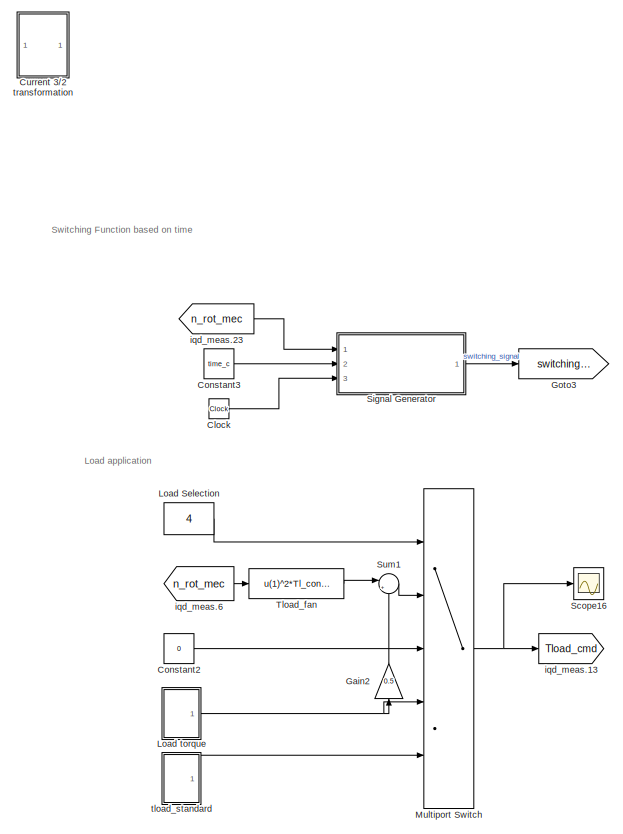
[diagram: root canvas - part 1/4, top left region]
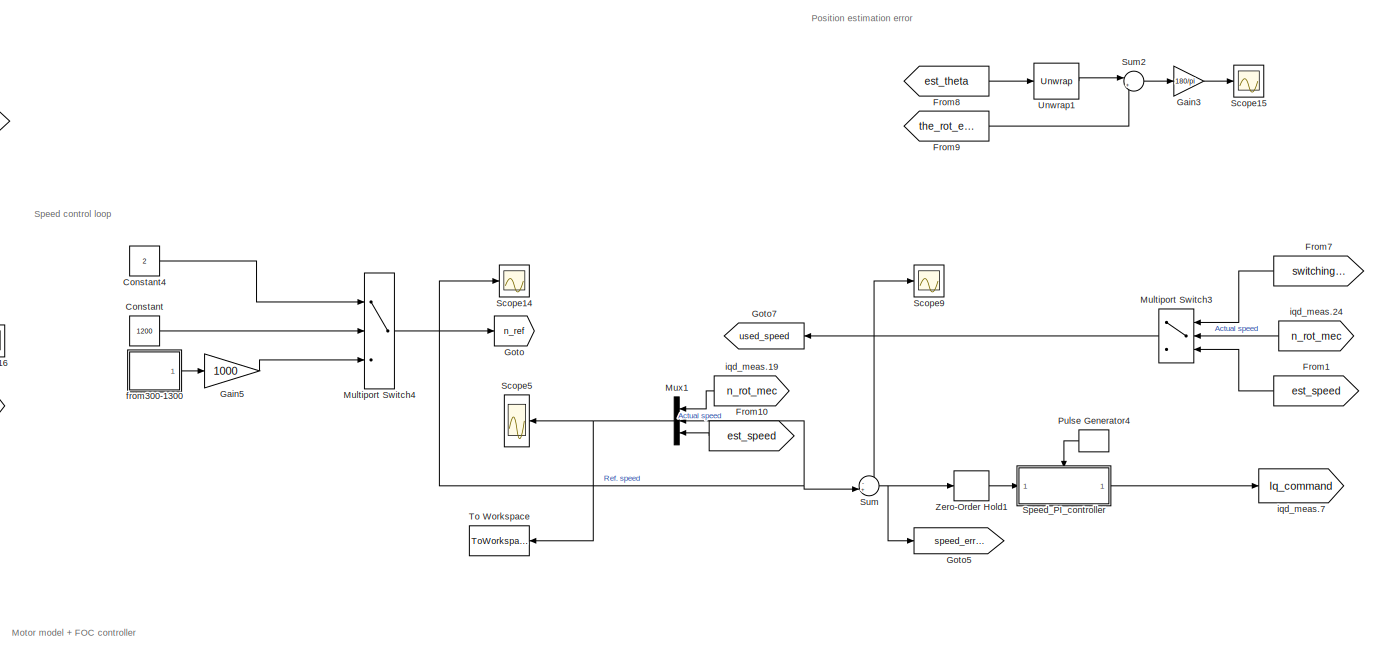
[diagram: root canvas - part 2/4, top center region]
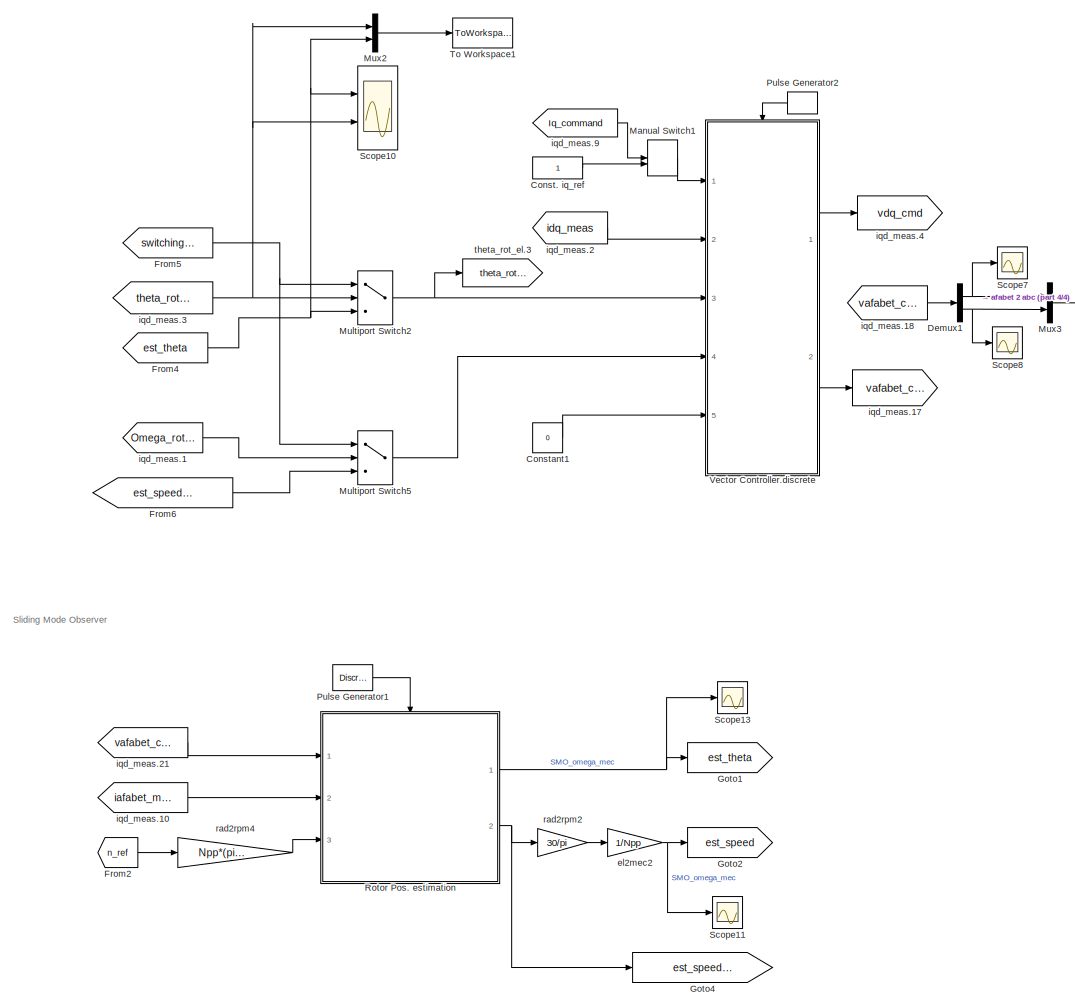
[diagram: root canvas - part 3/4, bottom center region]
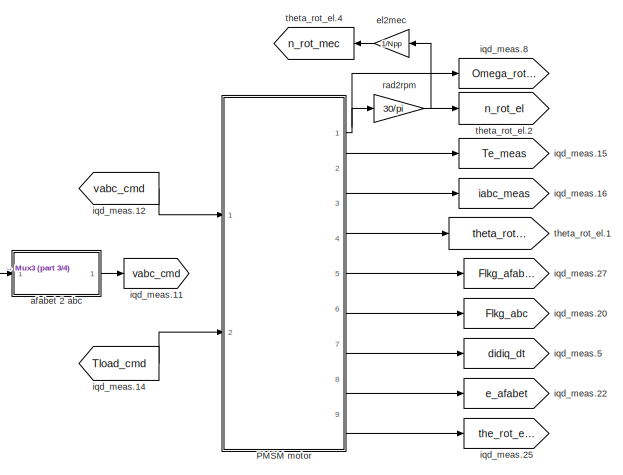
[diagram: root canvas - part 4/4, middle right region]
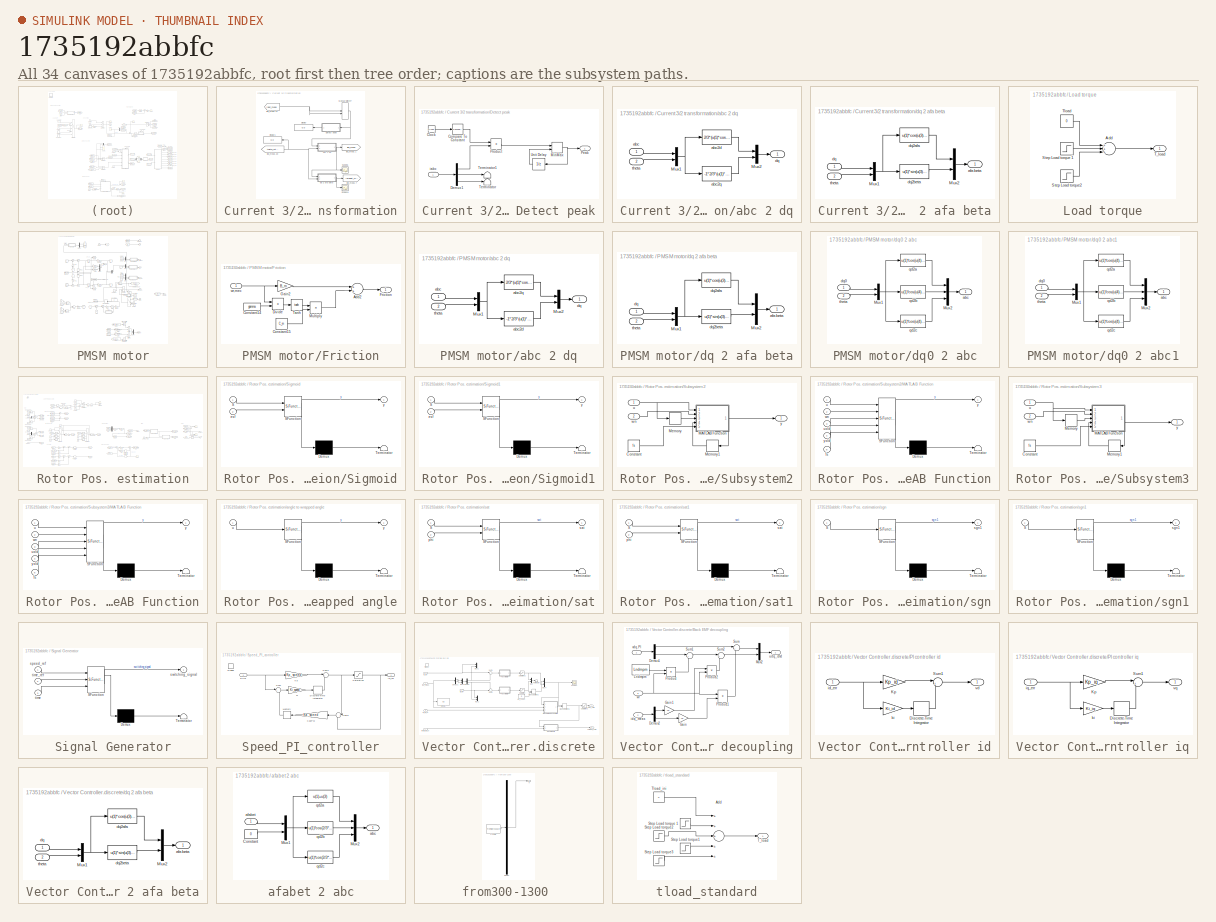
[diagram: thumbnail index - all 34 canvases of the model, root first then tree order]
MODEL slx_1735192abbfc
KIND model
CONFIG AbsTol = auto
CONFIG EnableMultiTasking = on
CONFIG FixedStep = 1/fs/4
CONFIG InitFcn = controllers\nmodel_parameters\nKT2C = 1/(3/2)/(Npp*Lndmpm);\nTload = 10; %Nm\ntime_c = 0.5; %0.5\nts_mod = 1;\nnoise_ena = 0;\n\n%PLL\nzeta=1;\ngain = 0.5;\nw_n=250*2*pi*0.4032*gain;\nKi_est=w_n^2;\nKp_est=2*zeta*w_n;
CONFIG MaxStep = 1/fs/2
CONFIG MinStep = auto
CONFIG RelTol = 1e-5
CONFIG SampleTimeConstraint = Unconstrained
CONFIG Solver = ode45
CONFIG SolverName = ode45
CONFIG StartTime = 0
CONFIG StopTime = 16
BLOCK [Clock] Clock
BLOCK [Constant] Const. iq_ref
BLOCK [Constant] Constant
  Value = 1200
BLOCK [Constant] Constant1
  Value = 0
BLOCK [Constant] Constant2
  Value = 0
BLOCK [Constant] Constant3
  Value = time_c
BLOCK [Constant] Constant4
  Value = 2
BLOCK [SubSystem] Current 3//2 transformation
  Ports = []
  RequestExecContextInheritance = off
BLOCK [SubSystem] Current 3//2 transformation/Detect peak
  Ports = [1, 1]
  RequestExecContextInheritance = off
BLOCK [Clock] Current 3//2 transformation/Detect peak/Clock
BLOCK [Reference] Current 3//2 transformation/Detect peak/Compare To Constant  REF=simulink/Logic and Bit
Operations/Compare
To Constant
  Ports = [1, 1]
  SourceBlock = simulink/Logic and Bit\nOperations/Compare\nTo Constant
  SourceProductBaseCode = SL
  SourceProductName = Simulink
  SourceType = Compare To Constant
BLOCK [Demux] Current 3//2 transformation/Detect peak/Demux1
  DisplayOption = bar
  Outputs = 3
  Ports = [1, 3]
BLOCK [MinMax] Current 3//2 transformation/Detect peak/MinMax
  Function = max
  InputSameDT = off
  Inputs = 2
  Ports = [2, 1]
  SaturateOnIntegerOverflow = off
BLOCK [Outport] Current 3//2 transformation/Detect peak/Peak
  IconDisplay = Port number
BLOCK [Product] Current 3//2 transformation/Detect peak/Product
  InputSameDT = off
  OutDataTypeStr = Inherit: Inherit via internal rule
  Ports = [2, 1]
  SaturateOnIntegerOverflow = off
BLOCK [Terminator] Current 3//2 transformation/Detect peak/Terminator
BLOCK [Terminator] Current 3//2 transformation/Detect peak/Terminator1
BLOCK [UnitDelay] Current 3//2 transformation/Detect peak/Unit Delay
  SampleTime = 1/5e3
BLOCK [Inport] Current 3//2 transformation/Detect peak/iabc
  IconDisplay = Port number
BLOCK [Display] Current 3//2 transformation/Display
  Decimation = 1
  Ports = [1]
BLOCK [Display] Current 3//2 transformation/Display1
  Decimation = 1
  Ports = [1]
BLOCK [ManualSwitch] Current 3//2 transformation/Manual Switch7
  CurrentSetting = 0
BLOCK [Scope] Current 3//2 transformation/Scope14
  Floating = off
  NumInputPorts = 1
  Ports = [1]
  ScopeSpecificationString = C++SS(StrPVP('Location','[119, 56, 1049, 720]'),StrPVP('Open','off'),MxPVP('AxesTitles',53,'struct(''axes1'',''%<SignalLabel>'')'),StrPVP('ShowLegends','off'),StrPVP('YMin','-5500'),StrPVP('YMax','5500'),StrPVP('SaveName','ScopeData27'),StrPVP('DataFormat','StructureWithTime'),StrPVP('LimitDataPoints','off'),StrPVP('BlockParamSampleTime','0'),StrPVP('Decimation','1'),StrPVP('BlockParamSampleInput'...<+8ch>
BLOCK [Scope] Current 3//2 transformation/Scope6
  Floating = off
  NumInputPorts = 1
  Ports = [1]
  ScopeSpecificationString = C++SS(StrPVP('Location','[533, 264, 1183, 659]'),StrPVP('Open','off'),StrPVP('ZoomMode','xonly'),MxPVP('AxesTitles',53,'struct(''axes1'',''%<SignalLabel>'')'),StrPVP('ShowLegends','off'),StrPVP('SaveName','ScopeData25'),StrPVP('DataFormat','StructureWithTime'),StrPVP('LimitDataPoints','off'),StrPVP('BlockParamSampleTime','0'),StrPVP('Decimation','1'),StrPVP('BlockParamSampleInput','off'))
BLOCK [SubSystem] Current 3//2 transformation/abc 2 dq
  Ports = [2, 1]
  RequestExecContextInheritance = off
BLOCK [Mux] Current 3//2 transformation/abc 2 dq/Mux1
  DisplayOption = bar
  Inputs = 2
  Ports = [2, 1]
BLOCK [Mux] Current 3//2 transformation/abc 2 dq/Mux2
  DisplayOption = bar
  Inputs = 2
  Ports = [2, 1]
BLOCK [Inport] Current 3//2 transformation/abc 2 dq/abc
  IconDisplay = Port number
BLOCK [Fcn] Current 3//2 transformation/abc 2 dq/abc2d
  Expr = 2/3*(u(1)*cos(u(4))+u(2)*cos(u(4)-2*pi/3)+u(3)*cos(u(4)-4*pi/3))
BLOCK [Fcn] Current 3//2 transformation/abc 2 dq/abc2q
  Expr = -1*2/3*(u(1)*sin(u(4))+u(2)*sin(u(4)-2*pi/3)+u(3)*sin(u(4)-4*pi/3))
BLOCK [Outport] Current 3//2 transformation/abc 2 dq/dq
  IconDisplay = Port number
BLOCK [Inport] Current 3//2 transformation/abc 2 dq/theta
  IconDisplay = Port number
  Port = 2
BLOCK [SubSystem] Current 3//2 transformation/dq 2 afa beta
  Ports = [2, 1]
  RequestExecContextInheritance = off
BLOCK [Mux] Current 3//2 transformation/dq 2 afa beta/Mux1
  DisplayOption = bar
  Inputs = 2
  Ports = [2, 1]
BLOCK [Mux] Current 3//2 transformation/dq 2 afa beta/Mux2
  DisplayOption = bar
  Inputs = 2
  Ports = [2, 1]
BLOCK [Outport] Current 3//2 transformation/dq 2 afa beta/afa beta
  IconDisplay = Port number
BLOCK [Inport] Current 3//2 transformation/dq 2 afa beta/dq
  IconDisplay = Port number
BLOCK [Fcn] Current 3//2 transformation/dq 2 afa beta/dq2afa
  Expr = u(1)*cos(u(3))-u(2)*sin(u(3))
BLOCK [Fcn] Current 3//2 transformation/dq 2 afa beta/dq2beta
  Expr = u(1)*sin(u(3))+u(2)*cos(u(3))
BLOCK [Inport] Current 3//2 transformation/dq 2 afa beta/theta
  IconDisplay = Port number
  Port = 2
BLOCK [Goto] Current 3//2 transformation/iqd_meas.1
  GotoTag = idq_meas
  TagVisibility = global
BLOCK [From] Current 3//2 transformation/iqd_meas.20
  CloseFcn = tagdialog Close
  GotoTag = theta_rot_el
  TagVisibility = global
BLOCK [From] Current 3//2 transformation/iqd_meas.21
  CloseFcn = tagdialog Close
  GotoTag = iabc_meas
  TagVisibility = global
BLOCK [Goto] Current 3//2 transformation/iqd_meas.7
  GotoTag = iafabet_meas
  TagVisibility = global
BLOCK [Demux] Demux1
  DisplayOption = bar
  Outputs = 2
  Ports = [1, 2]
BLOCK [From] From1
  GotoTag = est_speed
BLOCK [From] From10
  GotoTag = est_speed
BLOCK [From] From2
  GotoTag = n_ref
BLOCK [From] From4
  GotoTag = est_theta
BLOCK [From] From5
  GotoTag = switching_signal
BLOCK [From] From6
  GotoTag = est_speed_electric
BLOCK [From] From7
  GotoTag = switching_signal
BLOCK [From] From8
  GotoTag = est_theta
BLOCK [From] From9
  GotoTag = the_rot_el_cont
BLOCK [Gain] Gain2
  Gain = 0.5
  OutDataTypeStr = Inherit: Inherit via internal rule
  ParamDataTypeStr = Inherit: Inherit via internal rule
  SaturateOnIntegerOverflow = off
BLOCK [Gain] Gain3
  Gain = 180/pi
  OutDataTypeStr = Inherit: Inherit via internal rule
  ParamDataTypeStr = Inherit: Inherit via internal rule
  SaturateOnIntegerOverflow = off
BLOCK [Gain] Gain5
  Gain = 1000
  OutDataTypeStr = Inherit: Inherit via internal rule
  ParamDataTypeStr = Inherit: Inherit via internal rule
  SaturateOnIntegerOverflow = off
BLOCK [Goto] Goto
  GotoTag = n_ref
BLOCK [Goto] Goto1
  GotoTag = est_theta
BLOCK [Goto] Goto2
  GotoTag = est_speed
BLOCK [Goto] Goto3
  GotoTag = switching_signal
BLOCK [Goto] Goto4
  GotoTag = est_speed_electric
BLOCK [Goto] Goto5
  GotoTag = speed_error
BLOCK [Goto] Goto7
  GotoTag = used_speed
BLOCK [Constant] Load Selection
  Value = 4
BLOCK [SubSystem] Load torque
  Ports = [0, 1]
  RequestExecContextInheritance = off
BLOCK [Sum] Load torque/Add
  InputSameDT = off
  Inputs = +++
  OutDataTypeStr = Inherit: Inherit via internal rule
  Ports = [3, 1]
  SaturateOnIntegerOverflow = off
BLOCK [Step] Load torque/Step Load torque 1
  After = Tload
  SampleTime = 0
  Time = 1.5
BLOCK [Step] Load torque/Step Load torque2
  After = -Tload
  SampleTime = 0
  Time = 2
BLOCK [Outport] Load torque/T_load
  IconDisplay = Port number
BLOCK [Constant] Load torque/Tload
  Value = 0
BLOCK [ManualSwitch] Manual Switch1
BLOCK [MultiPortSwitch] Multiport Switch
  InputSameDT = off
  Inputs = 4
  Ports = [5, 1]
  SaturateOnIntegerOverflow = off
BLOCK [MultiPortSwitch] Multiport Switch2
  DataPortOrder = Zero-based contiguous
  InputSameDT = off
  Inputs = 2
  Ports = [3, 1]
  SaturateOnIntegerOverflow = off
  zeroidx = on
BLOCK [MultiPortSwitch] Multiport Switch3
  DataPortOrder = Zero-based contiguous
  InputSameDT = off
  Inputs = 2
  Ports = [3, 1]
  SaturateOnIntegerOverflow = off
  zeroidx = on
BLOCK [MultiPortSwitch] Multiport Switch4
  DiagnosticForDefault = Warning
  InputSameDT = off
  Inputs = 2
  Ports = [3, 1]
  SaturateOnIntegerOverflow = off
BLOCK [MultiPortSwitch] Multiport Switch5
  DataPortOrder = Zero-based contiguous
  InputSameDT = off
  Inputs = 2
  Ports = [3, 1]
  SaturateOnIntegerOverflow = off
  zeroidx = on
BLOCK [Mux] Mux1
  DisplayOption = bar
  Inputs = 3
  Ports = [3, 1]
BLOCK [Mux] Mux2
  DisplayOption = bar
  Inputs = 2
  Ports = [2, 1]
BLOCK [Mux] Mux3
  DisplayOption = bar
  Inputs = 2
  Ports = [2, 1]
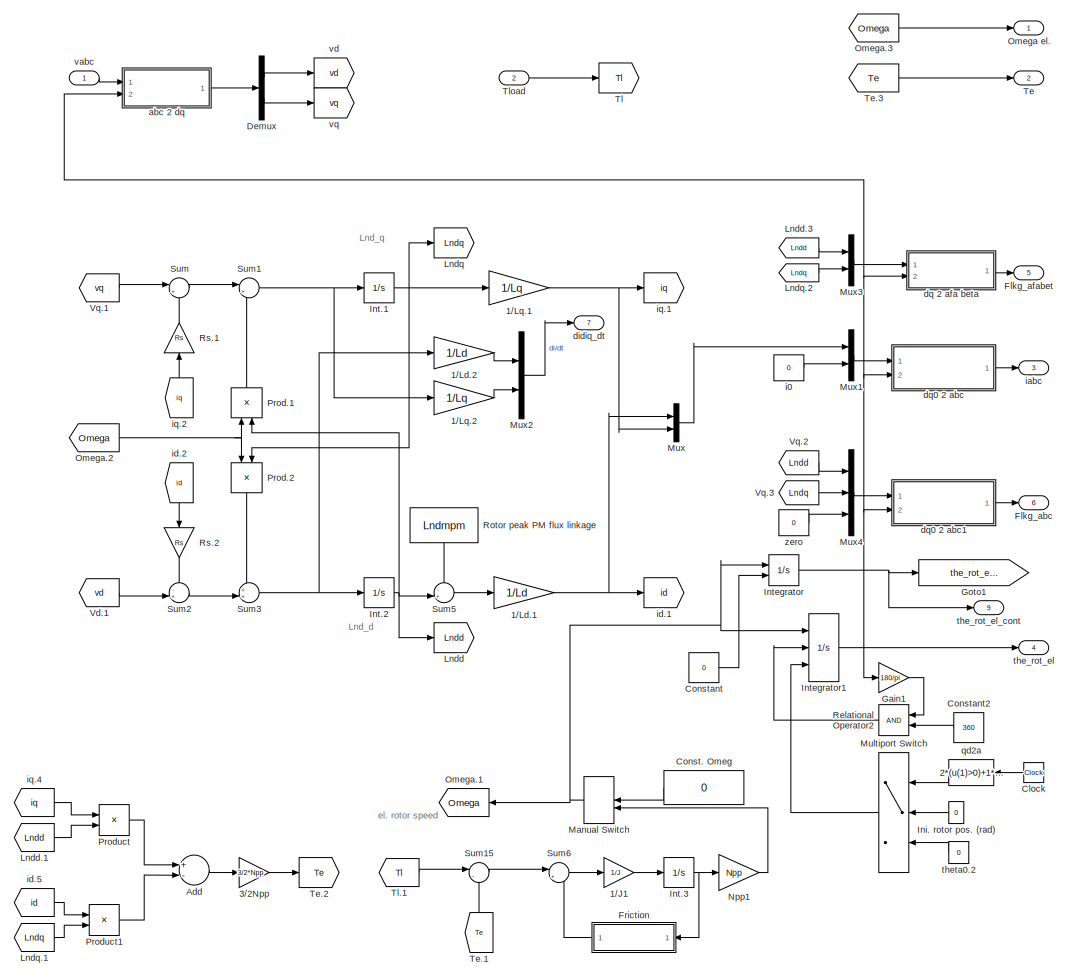
[diagram: PMSM motor - part 1/3, full width, middle band]
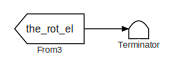
[diagram: PMSM motor - part 2/3, middle right region]
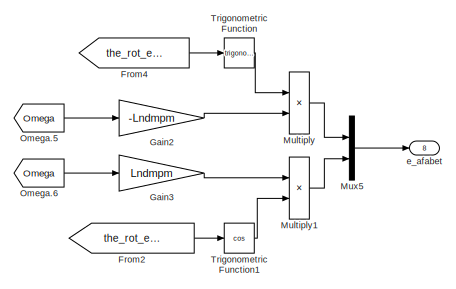
[diagram: PMSM motor - part 3/3, bottom center region]
BLOCK [SubSystem] PMSM motor
  Ports = [2, 9]
  RequestExecContextInheritance = off
BLOCK [Gain] PMSM motor/1//J1
  Gain = 1/J
  OutDataTypeStr = Inherit: Inherit via internal rule
  ParamDataTypeStr = Inherit: Inherit via internal rule
  SaturateOnIntegerOverflow = off
BLOCK [Gain] PMSM motor/1//Ld.1
  Gain = 1/Ld
  OutDataTypeStr = Inherit: Inherit via internal rule
  ParamDataTypeStr = Inherit: Inherit via internal rule
  SaturateOnIntegerOverflow = off
BLOCK [Gain] PMSM motor/1//Ld.2
  Gain = 1/Ld
  OutDataTypeStr = Inherit: Inherit via internal rule
  ParamDataTypeStr = Inherit: Inherit via internal rule
  SaturateOnIntegerOverflow = off
BLOCK [Gain] PMSM motor/1//Lq.1
  Gain = 1/Lq
  OutDataTypeStr = Inherit: Inherit via internal rule
  ParamDataTypeStr = Inherit: Inherit via internal rule
  SaturateOnIntegerOverflow = off
BLOCK [Gain] PMSM motor/1//Lq.2
  Gain = 1/Lq
  OutDataTypeStr = Inherit: Inherit via internal rule
  ParamDataTypeStr = Inherit: Inherit via internal rule
  SaturateOnIntegerOverflow = off
BLOCK [Gain] PMSM motor/3//2Npp
  Gain = 3/2*Npp
  OutDataTypeStr = Inherit: Inherit via internal rule
  ParamDataTypeStr = Inherit: Inherit via internal rule
  SaturateOnIntegerOverflow = off
BLOCK [Sum] PMSM motor/Add
  InputSameDT = off
  Inputs = +-
  OutDataTypeStr = Inherit: Inherit via internal rule
  Ports = [2, 1]
  SaturateOnIntegerOverflow = off
BLOCK [Clock] PMSM motor/Clock
BLOCK [Constant] PMSM motor/Const. Omeg
  Value = 0
BLOCK [Constant] PMSM motor/Constant
  Value = 0
BLOCK [Constant] PMSM motor/Constant2
  Value = 360
BLOCK [Demux] PMSM motor/Demux
  DisplayOption = bar
  Outputs = 2
  Ports = [1, 2]
BLOCK [Outport] PMSM motor/Flkg_abc
  IconDisplay = Port number
  Port = 6
BLOCK [Outport] PMSM motor/Flkg_afabet
  IconDisplay = Port number
  Port = 5
BLOCK [SubSystem] PMSM motor/Friction
  Ports = [1, 1]
  RequestExecContextInheritance = off
BLOCK [Sum] PMSM motor/Friction/Add2
  InputSameDT = off
  OutDataTypeStr = Inherit: Inherit via internal rule
  Ports = [2, 1]
  SaturateOnIntegerOverflow = off
BLOCK [Constant] PMSM motor/Friction/Constant14
  Value = gamma
BLOCK [Constant] PMSM motor/Friction/Constant15
  Value = C_m
BLOCK [Product] PMSM motor/Friction/Divide
  InputSameDT = off
  Inputs = */
  OutDataTypeStr = Inherit: Inherit via internal rule
  Ports = [2, 1]
  RndMeth = Floor
  SaturateOnIntegerOverflow = off
BLOCK [Outport] PMSM motor/Friction/Friction
  IconDisplay = Port number
BLOCK [Gain] PMSM motor/Friction/Gain2
  Gain = B_m
  OutDataTypeStr = Inherit: Inherit via internal rule
  ParamDataTypeStr = Inherit: Inherit via internal rule
  SaturateOnIntegerOverflow = off
BLOCK [Product] PMSM motor/Friction/Multiply
  InputSameDT = off
  OutDataTypeStr = Inherit: Inherit via internal rule
  Ports = [2, 1]
  RndMeth = Floor
  SaturateOnIntegerOverflow = off
BLOCK [Trigonometry] PMSM motor/Friction/Tanh
  Operator = tanh
  Ports = [1, 1]
BLOCK [Inport] PMSM motor/Friction/wr,mec
  IconDisplay = Port number
BLOCK [From] PMSM motor/From2
  GotoTag = the_rot_el_cont
BLOCK [From] PMSM motor/From3
  GotoTag = the_rot_el
BLOCK [From] PMSM motor/From4
  GotoTag = the_rot_el_cont
BLOCK [Gain] PMSM motor/Gain1
  Gain = 180/pi
  OutDataTypeStr = Inherit: Inherit via internal rule
  ParamDataTypeStr = Inherit: Inherit via internal rule
  SaturateOnIntegerOverflow = off
BLOCK [Gain] PMSM motor/Gain2
  Gain = -Lndmpm
  OutDataTypeStr = Inherit: Inherit via internal rule
  ParamDataTypeStr = Inherit: Inherit via internal rule
  SaturateOnIntegerOverflow = off
BLOCK [Gain] PMSM motor/Gain3
  Gain = Lndmpm
  OutDataTypeStr = Inherit: Inherit via internal rule
  ParamDataTypeStr = Inherit: Inherit via internal rule
  SaturateOnIntegerOverflow = off
BLOCK [Goto] PMSM motor/Goto1
  GotoTag = the_rot_el_cont
BLOCK [Constant] PMSM motor/Ini. rotor pos. (rad)
  Value = 0
BLOCK [Integrator] PMSM motor/Int.1
  Ports = [1, 1]
BLOCK [Integrator] PMSM motor/Int.2
  InitialCondition = Lndd_ini
  Ports = [1, 1]
BLOCK [Integrator] PMSM motor/Int.3
  InitialCondition = Omegae_ini/Npp
  Ports = [1, 1]
BLOCK [Integrator] PMSM motor/Integrator
  InitialConditionSource = external
  Ports = [2, 1]
BLOCK [Integrator] PMSM motor/Integrator1
  ExternalReset = rising
  InitialCondition = pi/3
  InitialConditionSource = external
  Ports = [3, 1]
BLOCK [Goto] PMSM motor/Lndd
  GotoTag = Lndd
BLOCK [From] PMSM motor/Lndd.1
  CloseFcn = tagdialog Close
  GotoTag = Lndd
BLOCK [From] PMSM motor/Lndd.3
  CloseFcn = tagdialog Close
  GotoTag = Lndd
BLOCK [Goto] PMSM motor/Lndq
  GotoTag = Lndq
BLOCK [From] PMSM motor/Lndq.1
  CloseFcn = tagdialog Close
  GotoTag = Lndq
BLOCK [From] PMSM motor/Lndq.2
  CloseFcn = tagdialog Close
  GotoTag = Lndq
BLOCK [ManualSwitch] PMSM motor/Manual Switch
  CurrentSetting = 0
BLOCK [Product] PMSM motor/Multiply
  InputSameDT = off
  OutDataTypeStr = Inherit: Inherit via internal rule
  Ports = [2, 1]
  RndMeth = Floor
  SaturateOnIntegerOverflow = off
BLOCK [Product] PMSM motor/Multiply1
  InputSameDT = off
  OutDataTypeStr = Inherit: Inherit via internal rule
  Ports = [2, 1]
  RndMeth = Floor
  SaturateOnIntegerOverflow = off
BLOCK [MultiPortSwitch] PMSM motor/Multiport Switch
  InputSameDT = off
  Inputs = 2
  Ports = [3, 1]
  SaturateOnIntegerOverflow = off
BLOCK [Mux] PMSM motor/Mux
  DisplayOption = bar
  Inputs = 2
  Ports = [2, 1]
BLOCK [Mux] PMSM motor/Mux1
  DisplayOption = bar
  Inputs = 2
  Ports = [2, 1]
BLOCK [Mux] PMSM motor/Mux2
  DisplayOption = bar
  Inputs = 2
  Ports = [2, 1]
BLOCK [Mux] PMSM motor/Mux3
  DisplayOption = bar
  Inputs = 2
  Ports = [2, 1]
BLOCK [Mux] PMSM motor/Mux4
  DisplayOption = bar
  Inputs = 3
  Ports = [3, 1]
BLOCK [Mux] PMSM motor/Mux5
  DisplayOption = bar
  Inputs = 2
  Ports = [2, 1]
BLOCK [Gain] PMSM motor/Npp1
  Gain = Npp
  OutDataTypeStr = Inherit: Inherit via internal rule
  ParamDataTypeStr = Inherit: Inherit via internal rule
  SaturateOnIntegerOverflow = off
BLOCK [Outport] PMSM motor/Omega el.
  IconDisplay = Port number
BLOCK [Goto] PMSM motor/Omega.1
  GotoTag = Omega
BLOCK [From] PMSM motor/Omega.2
  CloseFcn = tagdialog Close
  GotoTag = Omega
BLOCK [From] PMSM motor/Omega.3
  CloseFcn = tagdialog Close
  GotoTag = Omega
BLOCK [From] PMSM motor/Omega.5
  CloseFcn = tagdialog Close
  GotoTag = Omega
BLOCK [From] PMSM motor/Omega.6
  CloseFcn = tagdialog Close
  GotoTag = Omega
BLOCK [Product] PMSM motor/Prod.1
  InputSameDT = off
  OutDataTypeStr = Inherit: Inherit via internal rule
  Ports = [2, 1]
  SaturateOnIntegerOverflow = off
BLOCK [Product] PMSM motor/Prod.2
  InputSameDT = off
  OutDataTypeStr = Inherit: Inherit via internal rule
  Ports = [2, 1]
  SaturateOnIntegerOverflow = off
BLOCK [Product] PMSM motor/Product
  InputSameDT = off
  OutDataTypeStr = Inherit: Inherit via internal rule
  Ports = [2, 1]
  SaturateOnIntegerOverflow = off
BLOCK [Product] PMSM motor/Product1
  InputSameDT = off
  OutDataTypeStr = Inherit: Inherit via internal rule
  Ports = [2, 1]
  SaturateOnIntegerOverflow = off
BLOCK [RelationalOperator] PMSM motor/Relational Operator2
  InputSameDT = off
  OutDataTypeStr = boolean
  Ports = [2, 1]
BLOCK [Constant] PMSM motor/Rotor peak PM flux linkage
  Value = Lndmpm
BLOCK [Gain] PMSM motor/Rs.1
  Gain = Rs
  OutDataTypeStr = Inherit: Inherit via internal rule
  ParamDataTypeStr = Inherit: Inherit via internal rule
  SaturateOnIntegerOverflow = off
BLOCK [Gain] PMSM motor/Rs.2
  Gain = Rs
  OutDataTypeStr = Inherit: Inherit via internal rule
  ParamDataTypeStr = Inherit: Inherit via internal rule
  SaturateOnIntegerOverflow = off
BLOCK [Sum] PMSM motor/Sum
  IconShape = round
  InputSameDT = off
  Inputs = |+-
  OutDataTypeStr = Inherit: Inherit via internal rule
  Ports = [2, 1]
  SaturateOnIntegerOverflow = off
BLOCK [Sum] PMSM motor/Sum1
  IconShape = round
  InputSameDT = off
  Inputs = |+-
  OutDataTypeStr = Inherit: Inherit via internal rule
  Ports = [2, 1]
  SaturateOnIntegerOverflow = off
BLOCK [Sum] PMSM motor/Sum15
  IconShape = round
  InputSameDT = off
  Inputs = |-+
  OutDataTypeStr = Inherit: Inherit via internal rule
  Ports = [2, 1]
  SaturateOnIntegerOverflow = off
BLOCK [Sum] PMSM motor/Sum2
  IconShape = round
  InputSameDT = off
  Inputs = -+|
  OutDataTypeStr = Inherit: Inherit via internal rule
  Ports = [2, 1]
  SaturateOnIntegerOverflow = off
BLOCK [Sum] PMSM motor/Sum3
  IconShape = round
  InputSameDT = off
  Inputs = ++|
  OutDataTypeStr = Inherit: Inherit via internal rule
  Ports = [2, 1]
  SaturateOnIntegerOverflow = off
BLOCK [Sum] PMSM motor/Sum5
  IconShape = round
  InputSameDT = off
  Inputs = -+|
  OutDataTypeStr = Inherit: Inherit via internal rule
  Ports = [2, 1]
  SaturateOnIntegerOverflow = off
BLOCK [Sum] PMSM motor/Sum6
  IconShape = round
  InputSameDT = off
  Inputs = |+-
  OutDataTypeStr = Inherit: Inherit via internal rule
  Ports = [2, 1]
  SaturateOnIntegerOverflow = off
BLOCK [Outport] PMSM motor/Te
  IconDisplay = Port number
  Port = 2
BLOCK [From] PMSM motor/Te.1
  CloseFcn = tagdialog Close
  GotoTag = Te
BLOCK [Goto] PMSM motor/Te.2
  GotoTag = Te
BLOCK [From] PMSM motor/Te.3
  CloseFcn = tagdialog Close
  GotoTag = Te
BLOCK [Terminator] PMSM motor/Terminator
BLOCK [Goto] PMSM motor/Tl
  GotoTag = Tl
BLOCK [From] PMSM motor/Tl.1
  CloseFcn = tagdialog Close
  GotoTag = Tl
BLOCK [Inport] PMSM motor/Tload
  IconDisplay = Port number
  Port = 2
BLOCK [Trigonometry] PMSM motor/Trigonometric Function
  Ports = [1, 1]
BLOCK [Trigonometry] PMSM motor/Trigonometric Function1
  Operator = cos
  Ports = [1, 1]
BLOCK [From] PMSM motor/Vd.1
  CloseFcn = tagdialog Close
  GotoTag = vd
BLOCK [From] PMSM motor/Vq.1
  CloseFcn = tagdialog Close
  GotoTag = vq
BLOCK [From] PMSM motor/Vq.2
  CloseFcn = tagdialog Close
  GotoTag = Lndd
BLOCK [From] PMSM motor/Vq.3
  CloseFcn = tagdialog Close
  GotoTag = Lndq
BLOCK [SubSystem] PMSM motor/abc 2 dq
  Ports = [2, 1]
  RequestExecContextInheritance = off
BLOCK [Mux] PMSM motor/abc 2 dq/Mux1
  DisplayOption = bar
  Inputs = 2
  Ports = [2, 1]
BLOCK [Mux] PMSM motor/abc 2 dq/Mux2
  DisplayOption = bar
  Inputs = 2
  Ports = [2, 1]
BLOCK [Inport] PMSM motor/abc 2 dq/abc
  IconDisplay = Port number
BLOCK [Fcn] PMSM motor/abc 2 dq/abc2d
  Expr = -1*2/3*(u(1)*sin(u(4))+u(2)*sin(u(4)-2*pi/3)+u(3)*sin(u(4)-4*pi/3))
BLOCK [Fcn] PMSM motor/abc 2 dq/abc2q
  Expr = 2/3*(u(1)*cos(u(4))+u(2)*cos(u(4)-2*pi/3)+u(3)*cos(u(4)-4*pi/3))
BLOCK [Outport] PMSM motor/abc 2 dq/dq
  IconDisplay = Port number
BLOCK [Inport] PMSM motor/abc 2 dq/theta
  IconDisplay = Port number
  Port = 2
BLOCK [Outport] PMSM motor/didiq_dt
  IconDisplay = Port number
  Port = 7
BLOCK [SubSystem] PMSM motor/dq 2 afa beta
  Ports = [2, 1]
  RequestExecContextInheritance = off
BLOCK [Mux] PMSM motor/dq 2 afa beta/Mux1
  DisplayOption = bar
  Inputs = 2
  Ports = [2, 1]
BLOCK [Mux] PMSM motor/dq 2 afa beta/Mux2
  DisplayOption = bar
  Inputs = 2
  Ports = [2, 1]
BLOCK [Outport] PMSM motor/dq 2 afa beta/afa beta
  IconDisplay = Port number
BLOCK [Inport] PMSM motor/dq 2 afa beta/dq
  IconDisplay = Port number
BLOCK [Fcn] PMSM motor/dq 2 afa beta/dq2afa
  Expr = u(1)*cos(u(3))-u(2)*sin(u(3))
BLOCK [Fcn] PMSM motor/dq 2 afa beta/dq2beta
  Expr = u(1)*sin(u(3))+u(2)*cos(u(3))
BLOCK [Inport] PMSM motor/dq 2 afa beta/theta
  IconDisplay = Port number
  Port = 2
BLOCK [SubSystem] PMSM motor/dq0 2 abc
  Ports = [2, 1]
  RequestExecContextInheritance = off
BLOCK [Mux] PMSM motor/dq0 2 abc/Mux1
  DisplayOption = bar
  Inputs = 2
  Ports = [2, 1]
BLOCK [Mux] PMSM motor/dq0 2 abc/Mux2
  DisplayOption = bar
  Inputs = 3
  Ports = [3, 1]
BLOCK [Outport] PMSM motor/dq0 2 abc/abc
  IconDisplay = Port number
BLOCK [Inport] PMSM motor/dq0 2 abc/dq0
  IconDisplay = Port number
BLOCK [Fcn] PMSM motor/dq0 2 abc/qd2a
  Expr = u(1)*cos(u(4))-u(2)*sin(u(4))+u(3)
BLOCK [Fcn] PMSM motor/dq0 2 abc/qd2b
  Expr = u(1)*cos(u(4)-2/3*pi)-u(2)*sin(u(4)-2/3*pi)+u(3)
BLOCK [Fcn] PMSM motor/dq0 2 abc/qd2c
  Expr = u(1)*cos(u(4)+2/3*pi)-u(2)*sin(u(4)+2/3*pi)+u(3)
BLOCK [Inport] PMSM motor/dq0 2 abc/theta
  IconDisplay = Port number
  Port = 2
BLOCK [SubSystem] PMSM motor/dq0 2 abc1
  Ports = [2, 1]
  RequestExecContextInheritance = off
BLOCK [Mux] PMSM motor/dq0 2 abc1/Mux1
  DisplayOption = bar
  Inputs = 2
  Ports = [2, 1]
BLOCK [Mux] PMSM motor/dq0 2 abc1/Mux2
  DisplayOption = bar
  Inputs = 3
  Ports = [3, 1]
BLOCK [Outport] PMSM motor/dq0 2 abc1/abc
  IconDisplay = Port number
BLOCK [Inport] PMSM motor/dq0 2 abc1/dq0
  IconDisplay = Port number
BLOCK [Fcn] PMSM motor/dq0 2 abc1/qd2a
  Expr = u(1)*cos(u(4))-u(2)*sin(u(4))+u(3)
BLOCK [Fcn] PMSM motor/dq0 2 abc1/qd2b
  Expr = u(1)*cos(u(4)-2/3*pi)-u(2)*sin(u(4)-2/3*pi)+u(3)
BLOCK [Fcn] PMSM motor/dq0 2 abc1/qd2c
  Expr = u(1)*cos(u(4)+2/3*pi)-u(2)*sin(u(4)+2/3*pi)+u(3)
BLOCK [Inport] PMSM motor/dq0 2 abc1/theta
  IconDisplay = Port number
  Port = 2
BLOCK [Outport] PMSM motor/e_afabet
  IconDisplay = Port number
  Port = 8
BLOCK [Constant] PMSM motor/i0
  Value = 0
BLOCK [Outport] PMSM motor/iabc
  IconDisplay = Port number
  Port = 3
BLOCK [Goto] PMSM motor/id.1
  GotoTag = id
BLOCK [From] PMSM motor/id.2
  CloseFcn = tagdialog Close
  GotoTag = id
BLOCK [From] PMSM motor/id.5
  CloseFcn = tagdialog Close
  GotoTag = id
BLOCK [Goto] PMSM motor/iq.1
  GotoTag = iq
BLOCK [From] PMSM motor/iq.2
  CloseFcn = tagdialog Close
  GotoTag = iq
BLOCK [From] PMSM motor/iq.4
  CloseFcn = tagdialog Close
  GotoTag = iq
BLOCK [Fcn] PMSM motor/qd2a
  Expr = 2*(u(1)>0)+1*(u(1)==0)
BLOCK [Outport] PMSM motor/the_rot_el
  IconDisplay = Port number
  Port = 4
BLOCK [Outport] PMSM motor/the_rot_el_cont
  IconDisplay = Port number
  Port = 9
BLOCK [Constant] PMSM motor/theta0.2
  Value = 0
BLOCK [Inport] PMSM motor/vabc
  IconDisplay = Port number
BLOCK [Goto] PMSM motor/vd
  GotoTag = vd
BLOCK [Goto] PMSM motor/vq
  GotoTag = vq
BLOCK [Constant] PMSM motor/zero
  Value = 0
BLOCK [DiscretePulseGenerator] Pulse Generator1
  Period = 1/fs
  PhaseDelay = 1/fs/4*0
  Ports = [0, 1]
  PulseType = Time based
  PulseWidth = 50
BLOCK [DiscretePulseGenerator] Pulse Generator2
  Period = 1/fs
  Ports = [0, 1]
  PulseType = Time based
  PulseWidth = 50
BLOCK [DiscretePulseGenerator] Pulse Generator4
  Period = 1/fs*2
  Ports = [0, 1]
  PulseType = Time based
  PulseWidth = 50
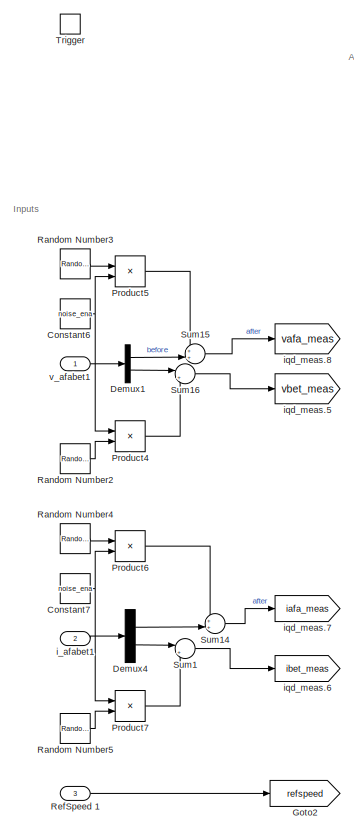
[diagram: Rotor Pos. estimation - part 1/4, middle left region]
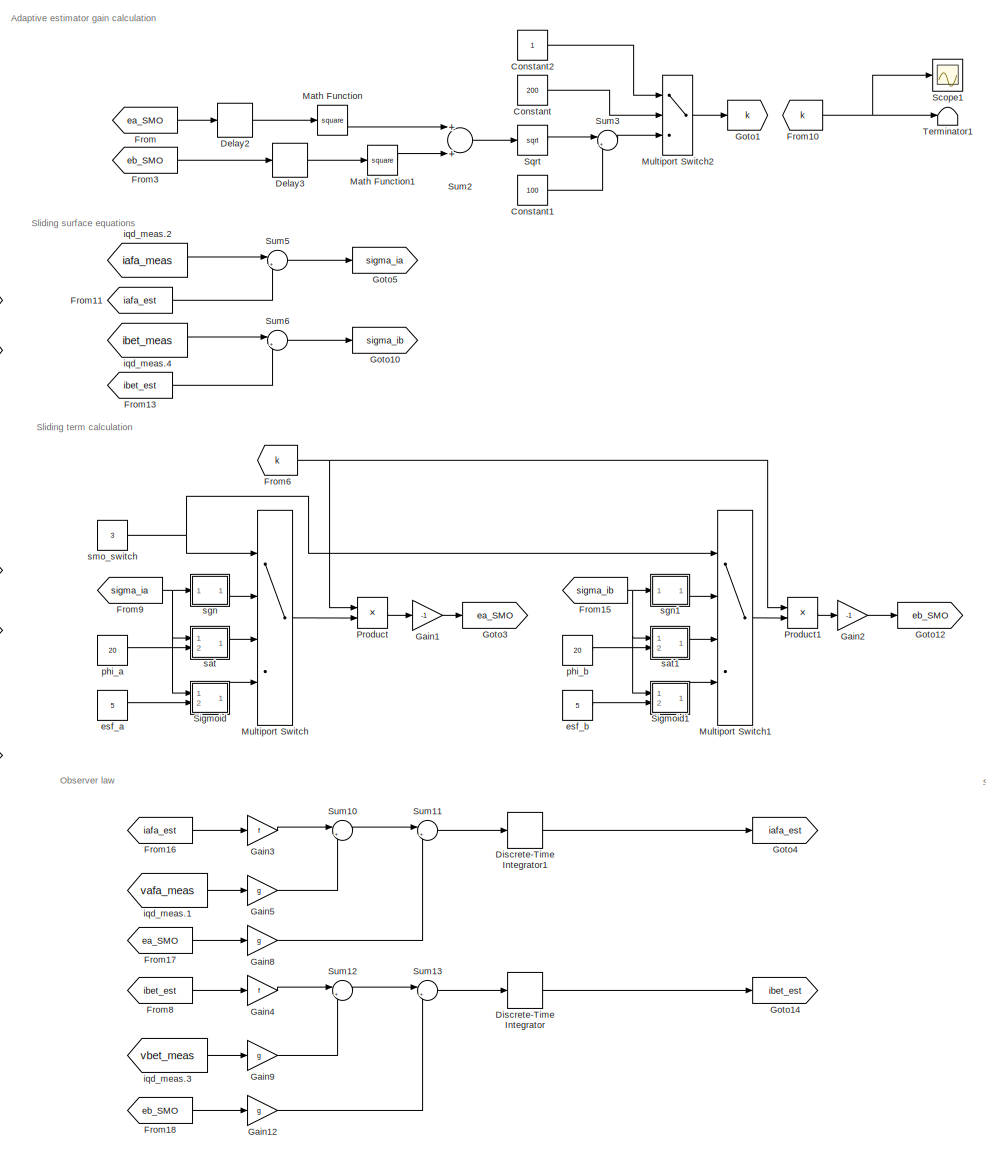
[diagram: Rotor Pos. estimation - part 2/4, left side, full height]
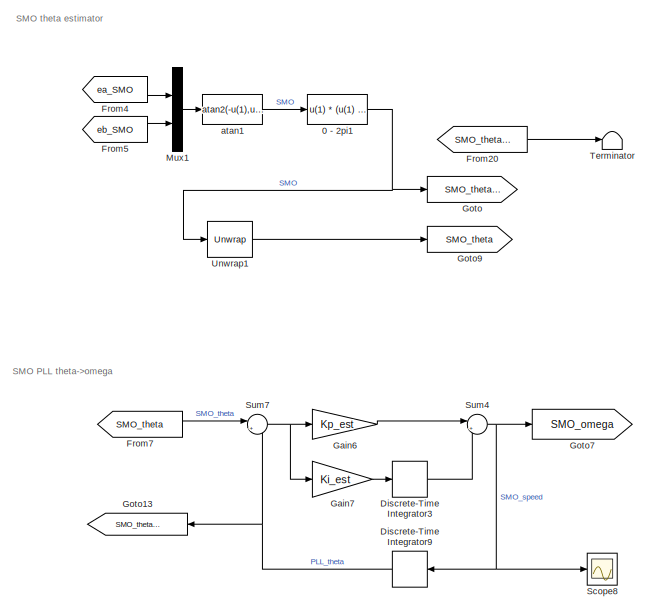
[diagram: Rotor Pos. estimation - part 3/4, central region]
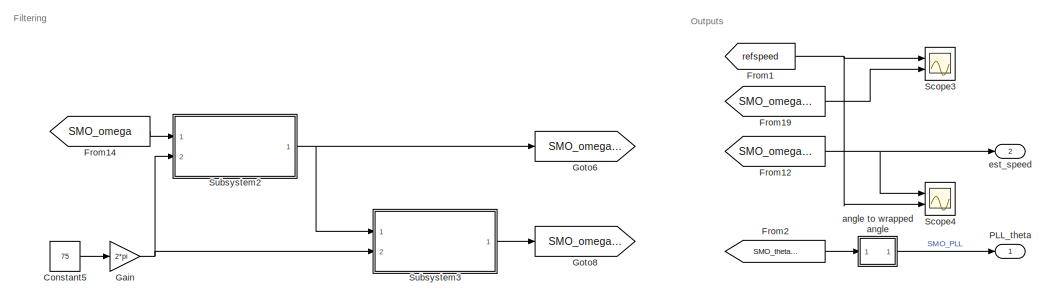
[diagram: Rotor Pos. estimation - part 4/4, middle right region]
BLOCK [SubSystem] Rotor Pos. estimation
  Ports = [3, 2, 0, 1]
  RequestExecContextInheritance = off
BLOCK [Fcn] Rotor Pos. estimation/0 - 2pi1
  Expr = u(1) * (u(1) >= 0) + (u(1) + 2 * pi) * (u(1) < 0)
BLOCK [Constant] Rotor Pos. estimation/Constant
  Value = 200
BLOCK [Constant] Rotor Pos. estimation/Constant1
  Value = 100
BLOCK [Constant] Rotor Pos. estimation/Constant2
BLOCK [Constant] Rotor Pos. estimation/Constant5
  Value = 75
BLOCK [Constant] Rotor Pos. estimation/Constant6
  Value = noise_ena
BLOCK [Constant] Rotor Pos. estimation/Constant7
  Value = noise_ena
BLOCK [Delay] Rotor Pos. estimation/Delay2
  DelayLength = 1
  InputPortMap = u0
  Ports = [1, 1]
BLOCK [Delay] Rotor Pos. estimation/Delay3
  DelayLength = 1
  InputPortMap = u0
  Ports = [1, 1]
BLOCK [Demux] Rotor Pos. estimation/Demux1
  DisplayOption = bar
  Outputs = 2
  Ports = [1, 2]
BLOCK [Demux] Rotor Pos. estimation/Demux4
  DisplayOption = bar
  Outputs = 2
  Ports = [1, 2]
BLOCK [DiscreteIntegrator] Rotor Pos. estimation/Discrete-Time Integrator
  ICPrevOutput = DiscIntNeverNeededParam
  ICPrevScaledInput = DiscIntNeverNeededParam
  InitialConditionSetting = Auto
  IntegratorMethod = Integration: Trapezoidal
  Ports = [1, 1]
  SampleTime = -1
BLOCK [DiscreteIntegrator] Rotor Pos. estimation/Discrete-Time Integrator1
  ICPrevOutput = DiscIntNeverNeededParam
  ICPrevScaledInput = DiscIntNeverNeededParam
  InitialConditionSetting = Auto
  IntegratorMethod = Integration: Trapezoidal
  Ports = [1, 1]
  SampleTime = -1
BLOCK [DiscreteIntegrator] Rotor Pos. estimation/Discrete-Time Integrator3
  ICPrevOutput = DiscIntNeverNeededParam
  ICPrevScaledInput = DiscIntNeverNeededParam
  InitialConditionSetting = Auto
  Ports = [1, 1]
  SampleTime = -1
BLOCK [DiscreteIntegrator] Rotor Pos. estimation/Discrete-Time Integrator9
  ICPrevOutput = DiscIntNeverNeededParam
  ICPrevScaledInput = DiscIntNeverNeededParam
  InitialConditionSetting = Auto
  Ports = [1, 1]
  SampleTime = -1
BLOCK [From] Rotor Pos. estimation/From
  GotoTag = ea_SMO
BLOCK [From] Rotor Pos. estimation/From1
  GotoTag = refspeed
BLOCK [From] Rotor Pos. estimation/From10
  GotoTag = k
BLOCK [From] Rotor Pos. estimation/From11
  GotoTag = iafa_est
BLOCK [From] Rotor Pos. estimation/From12
  GotoTag = SMO_omega_LPF2
BLOCK [From] Rotor Pos. estimation/From13
  GotoTag = ibet_est
BLOCK [From] Rotor Pos. estimation/From14
  GotoTag = SMO_omega
BLOCK [From] Rotor Pos. estimation/From15
  GotoTag = sigma_ib
BLOCK [From] Rotor Pos. estimation/From16
  GotoTag = iafa_est
BLOCK [From] Rotor Pos. estimation/From17
  GotoTag = ea_SMO
BLOCK [From] Rotor Pos. estimation/From18
  GotoTag = eb_SMO
BLOCK [From] Rotor Pos. estimation/From19
  GotoTag = SMO_omega_LPF1
BLOCK [From] Rotor Pos. estimation/From2
  GotoTag = SMO_theta_PLL1
BLOCK [From] Rotor Pos. estimation/From20
  GotoTag = SMO_theta_wrap
BLOCK [From] Rotor Pos. estimation/From3
  GotoTag = eb_SMO
BLOCK [From] Rotor Pos. estimation/From4
  GotoTag = ea_SMO
BLOCK [From] Rotor Pos. estimation/From5
  GotoTag = eb_SMO
BLOCK [From] Rotor Pos. estimation/From6
  GotoTag = k
BLOCK [From] Rotor Pos. estimation/From7
  GotoTag = SMO_theta
BLOCK [From] Rotor Pos. estimation/From8
  GotoTag = ibet_est
BLOCK [From] Rotor Pos. estimation/From9
  GotoTag = sigma_ia
BLOCK [Gain] Rotor Pos. estimation/Gain
  Gain = 2*pi
  OutDataTypeStr = Inherit: Inherit via internal rule
  ParamDataTypeStr = Inherit: Inherit via internal rule
  SaturateOnIntegerOverflow = off
BLOCK [Gain] Rotor Pos. estimation/Gain1
  Gain = -1
  OutDataTypeStr = Inherit: Inherit via internal rule
  ParamDataTypeStr = Inherit: Inherit via internal rule
  SaturateOnIntegerOverflow = off
BLOCK [Gain] Rotor Pos. estimation/Gain12
  Gain = g
  OutDataTypeStr = Inherit: Inherit via internal rule
  ParamDataTypeStr = Inherit: Inherit via internal rule
  SaturateOnIntegerOverflow = off
BLOCK [Gain] Rotor Pos. estimation/Gain2
  Gain = -1
  OutDataTypeStr = Inherit: Inherit via internal rule
  ParamDataTypeStr = Inherit: Inherit via internal rule
  SaturateOnIntegerOverflow = off
BLOCK [Gain] Rotor Pos. estimation/Gain3
  Gain = f
  OutDataTypeStr = Inherit: Inherit via internal rule
  ParamDataTypeStr = Inherit: Inherit via internal rule
  SaturateOnIntegerOverflow = off
BLOCK [Gain] Rotor Pos. estimation/Gain4
  Gain = f
  OutDataTypeStr = Inherit: Inherit via internal rule
  ParamDataTypeStr = Inherit: Inherit via internal rule
  SaturateOnIntegerOverflow = off
BLOCK [Gain] Rotor Pos. estimation/Gain5
  Gain = g
  OutDataTypeStr = Inherit: Inherit via internal rule
  ParamDataTypeStr = Inherit: Inherit via internal rule
  SaturateOnIntegerOverflow = off
BLOCK [Gain] Rotor Pos. estimation/Gain6
  Gain = Kp_est
  OutDataTypeStr = Inherit: Inherit via internal rule
  ParamDataTypeStr = Inherit: Inherit via internal rule
  SaturateOnIntegerOverflow = off
BLOCK [Gain] Rotor Pos. estimation/Gain7
  Gain = Ki_est
  OutDataTypeStr = Inherit: Inherit via internal rule
  ParamDataTypeStr = Inherit: Inherit via internal rule
  SaturateOnIntegerOverflow = off
BLOCK [Gain] Rotor Pos. estimation/Gain8
  Gain = g
  OutDataTypeStr = Inherit: Inherit via internal rule
  ParamDataTypeStr = Inherit: Inherit via internal rule
  SaturateOnIntegerOverflow = off
BLOCK [Gain] Rotor Pos. estimation/Gain9
  Gain = g
  OutDataTypeStr = Inherit: Inherit via internal rule
  ParamDataTypeStr = Inherit: Inherit via internal rule
  SaturateOnIntegerOverflow = off
BLOCK [Goto] Rotor Pos. estimation/Goto
  GotoTag = SMO_theta_wrap
BLOCK [Goto] Rotor Pos. estimation/Goto1
  GotoTag = k
BLOCK [Goto] Rotor Pos. estimation/Goto10
  GotoTag = sigma_ib
BLOCK [Goto] Rotor Pos. estimation/Goto12
  GotoTag = eb_SMO
BLOCK [Goto] Rotor Pos. estimation/Goto13
  GotoTag = SMO_theta_PLL1
BLOCK [Goto] Rotor Pos. estimation/Goto14
  GotoTag = ibet_est
BLOCK [Goto] Rotor Pos. estimation/Goto2
  GotoTag = refspeed
BLOCK [Goto] Rotor Pos. estimation/Goto3
  GotoTag = ea_SMO
BLOCK [Goto] Rotor Pos. estimation/Goto4
  GotoTag = iafa_est
BLOCK [Goto] Rotor Pos. estimation/Goto5
  GotoTag = sigma_ia
BLOCK [Goto] Rotor Pos. estimation/Goto6
  GotoTag = SMO_omega_LPF1
BLOCK [Goto] Rotor Pos. estimation/Goto7
  GotoTag = SMO_omega
BLOCK [Goto] Rotor Pos. estimation/Goto8
  GotoTag = SMO_omega_LPF2
BLOCK [Goto] Rotor Pos. estimation/Goto9
  GotoTag = SMO_theta
BLOCK [Math] Rotor Pos. estimation/Math Function
  Operator = square
  Ports = [1, 1]
BLOCK [Math] Rotor Pos. estimation/Math Function1
  Operator = square
  Ports = [1, 1]
BLOCK [MultiPortSwitch] Rotor Pos. estimation/Multiport Switch
  InputSameDT = off
  Ports = [4, 1]
  SaturateOnIntegerOverflow = off
BLOCK [MultiPortSwitch] Rotor Pos. estimation/Multiport Switch1
  InputSameDT = off
  Ports = [4, 1]
  SaturateOnIntegerOverflow = off
BLOCK [MultiPortSwitch] Rotor Pos. estimation/Multiport Switch2
  DiagnosticForDefault = Warning
  InputSameDT = off
  Inputs = 2
  Ports = [3, 1]
  SaturateOnIntegerOverflow = off
BLOCK [Mux] Rotor Pos. estimation/Mux1
  DisplayOption = bar
  Inputs = 2
  Ports = [2, 1]
BLOCK [Outport] Rotor Pos. estimation/PLL_theta
  IconDisplay = Port number
BLOCK [Product] Rotor Pos. estimation/Product
  InputSameDT = off
  OutDataTypeStr = Inherit: Inherit via internal rule
  Ports = [2, 1]
  RndMeth = Floor
  SaturateOnIntegerOverflow = off
BLOCK [Product] Rotor Pos. estimation/Product1
  InputSameDT = off
  OutDataTypeStr = Inherit: Inherit via internal rule
  Ports = [2, 1]
  RndMeth = Floor
  SaturateOnIntegerOverflow = off
BLOCK [Product] Rotor Pos. estimation/Product4
  InputSameDT = off
  OutDataTypeStr = Inherit: Inherit via internal rule
  Ports = [2, 1]
  RndMeth = Floor
  SaturateOnIntegerOverflow = off
BLOCK [Product] Rotor Pos. estimation/Product5
  InputSameDT = off
  OutDataTypeStr = Inherit: Inherit via internal rule
  Ports = [2, 1]
  RndMeth = Floor
  SaturateOnIntegerOverflow = off
BLOCK [Product] Rotor Pos. estimation/Product6
  InputSameDT = off
  OutDataTypeStr = Inherit: Inherit via internal rule
  Ports = [2, 1]
  RndMeth = Floor
  SaturateOnIntegerOverflow = off
BLOCK [Product] Rotor Pos. estimation/Product7
  InputSameDT = off
  OutDataTypeStr = Inherit: Inherit via internal rule
  Ports = [2, 1]
  RndMeth = Floor
  SaturateOnIntegerOverflow = off
BLOCK [RandomNumber] Rotor Pos. estimation/Random Number2
  Seed = 21874
  Variance = 0.01^2
BLOCK [RandomNumber] Rotor Pos. estimation/Random Number3
  Seed = 86241
  Variance = 0.01^2
BLOCK [RandomNumber] Rotor Pos. estimation/Random Number4
  Seed = 5678
  Variance = 0.001^2
BLOCK [RandomNumber] Rotor Pos. estimation/Random Number5
  Seed = 1234
  Variance = 0.001^2
BLOCK [Inport] Rotor Pos. estimation/RefSpeed 1
  IconDisplay = Port number
  Port = 3
BLOCK [Scope] Rotor Pos. estimation/Scope1
  Floating = off
  NumInputPorts = 1
  Ports = [1]
  ScopeSpecificationString = Simulink.scopes.TimeScopeBlockCfg('CurrentConfiguration', extmgr.ConfigurationSet(extmgr.Configuration('Core','General UI',true),extmgr.Configuration('Core','Source UI',true),extmgr.Configuration('Sources','WiredSimulink',true,'DataLoggingVariableName','ScopeData1'),extmgr.Configuration('Visuals','Time Domain',true,'SerializedDisplays',{struct('MinYLimReal','91.54107','MaxYLimReal','176.13035','YL...<+1411ch>
BLOCK [Scope] Rotor Pos. estimation/Scope3
  Floating = off
  NumInputPorts = 2
  Ports = [2]
  ScopeSpecificationString = Simulink.scopes.TimeScopeBlockCfg('CurrentConfiguration', extmgr.ConfigurationSet(extmgr.Configuration('Core','General UI',true),extmgr.Configuration('Core','Source UI',true),extmgr.Configuration('Sources','WiredSimulink',true,'DataLoggingVariableName','ScopeData1'),extmgr.Configuration('Visuals','Time Domain',true,'SerializedDisplays',{struct('MinYLimReal','405.32435','MaxYLimReal','428.91031','Y...<+1439ch>
BLOCK [Scope] Rotor Pos. estimation/Scope4
  Floating = off
  NumInputPorts = 2
  Ports = [2]
  ScopeSpecificationString = Simulink.scopes.TimeScopeBlockCfg('CurrentConfiguration', extmgr.ConfigurationSet(extmgr.Configuration('Core','General UI',true),extmgr.Configuration('Core','Source UI',true),extmgr.Configuration('Sources','WiredSimulink',true,'DataLoggingVariableName','ScopeData2'),extmgr.Configuration('Visuals','Time Domain',true,'SerializedDisplays',{struct('MinYLimReal','405.32435','MaxYLimReal','428.91031','Y...<+1439ch>
BLOCK [Scope] Rotor Pos. estimation/Scope8
  Floating = off
  NumInputPorts = 1
  Ports = [1]
  ScopeSpecificationString = Simulink.scopes.TimeScopeBlockCfg('CurrentConfiguration', extmgr.ConfigurationSet(extmgr.Configuration('Core','General UI',true),extmgr.Configuration('Core','Source UI',true),extmgr.Configuration('Sources','WiredSimulink',true,'DataLoggingVariableName','ScopeData4'),extmgr.Configuration('Visuals','Time Domain',true,'SerializedDisplays',{struct('MinYLimReal','-3718.56647','MaxYLimReal','9910.72684'...<+1445ch>
BLOCK [SubSystem] Rotor Pos. estimation/Sigmoid
  ErrorFcn = Stateflow.Translate.translate
  PermitHierarchicalResolution = ExplicitOnly
  Ports = [2, 1]
  RequestExecContextInheritance = off
  SFBlockType = MATLAB Function
  TreatAsAtomicUnit = on
BLOCK [Demux] Rotor Pos. estimation/Sigmoid/ Demux 
  Outputs = 1
  Ports = [1, 1]
BLOCK [S-Function] Rotor Pos. estimation/Sigmoid/ SFunction 
  EnableBusSupport = on
  FunctionName = sf_sfun
  PortCounts = [2 2]
  Ports = [2, 2]
  SFcnIsStateOwnerBlock = off
  SFunctionDeploymentMode = off
  Tag = Stateflow S-Function FOC_w_SMO_v1 12
BLOCK [Terminator] Rotor Pos. estimation/Sigmoid/ Terminator 
BLOCK [Inport] Rotor Pos. estimation/Sigmoid/S
  IconDisplay = Port number
BLOCK [Inport] Rotor Pos. estimation/Sigmoid/esf
  IconDisplay = Port number
  Port = 2
BLOCK [Outport] Rotor Pos. estimation/Sigmoid/y
  IconDisplay = Port number
BLOCK [SubSystem] Rotor Pos. estimation/Sigmoid1
  ErrorFcn = Stateflow.Translate.translate
  PermitHierarchicalResolution = ExplicitOnly
  Ports = [2, 1]
  RequestExecContextInheritance = off
  SFBlockType = MATLAB Function
  TreatAsAtomicUnit = on
BLOCK [Demux] Rotor Pos. estimation/Sigmoid1/ Demux 
  Outputs = 1
  Ports = [1, 1]
BLOCK [S-Function] Rotor Pos. estimation/Sigmoid1/ SFunction 
  EnableBusSupport = on
  FunctionName = sf_sfun
  PortCounts = [2 2]
  Ports = [2, 2]
  SFcnIsStateOwnerBlock = off
  SFunctionDeploymentMode = off
  Tag = Stateflow S-Function FOC_w_SMO_v1 1
BLOCK [Terminator] Rotor Pos. estimation/Sigmoid1/ Terminator 
BLOCK [Inport] Rotor Pos. estimation/Sigmoid1/S
  IconDisplay = Port number
BLOCK [Inport] Rotor Pos. estimation/Sigmoid1/esf
  IconDisplay = Port number
  Port = 2
BLOCK [Outport] Rotor Pos. estimation/Sigmoid1/y
  IconDisplay = Port number
BLOCK [Sqrt] Rotor Pos. estimation/Sqrt
BLOCK [SubSystem] Rotor Pos. estimation/Subsystem2
  Ports = [2, 1]
  RequestExecContextInheritance = off
BLOCK [Constant] Rotor Pos. estimation/Subsystem2/Constant
  Value = fs
BLOCK [SubSystem] Rotor Pos. estimation/Subsystem2/MATLAB Function
  ErrorFcn = Stateflow.Translate.translate
  PermitHierarchicalResolution = ExplicitOnly
  Ports = [5, 1]
  RequestExecContextInheritance = off
  SFBlockType = MATLAB Function
  TreatAsAtomicUnit = on
BLOCK [Demux] Rotor Pos. estimation/Subsystem2/MATLAB Function/ Demux 
  Outputs = 1
  Ports = [1, 1]
BLOCK [S-Function] Rotor Pos. estimation/Subsystem2/MATLAB Function/ SFunction 
  EnableBusSupport = on
  FunctionName = sf_sfun
  PortCounts = [5 2]
  Ports = [5, 2]
  SFcnIsStateOwnerBlock = off
  SFunctionDeploymentMode = off
  Tag = Stateflow S-Function FOC_w_SMO_v1 6
BLOCK [Terminator] Rotor Pos. estimation/Subsystem2/MATLAB Function/ Terminator 
BLOCK [Inport] Rotor Pos. estimation/Subsystem2/MATLAB Function/fs
  IconDisplay = Port number
  Port = 5
BLOCK [Inport] Rotor Pos. estimation/Subsystem2/MATLAB Function/u
  IconDisplay = Port number
BLOCK [Inport] Rotor Pos. estimation/Subsystem2/MATLAB Function/uold
  IconDisplay = Port number
  Port = 3
BLOCK [Inport] Rotor Pos. estimation/Subsystem2/MATLAB Function/wn
  IconDisplay = Port number
  Port = 2
BLOCK [Outport] Rotor Pos. estimation/Subsystem2/MATLAB Function/y
  IconDisplay = Port number
BLOCK [Inport] Rotor Pos. estimation/Subsystem2/MATLAB Function/yold
  IconDisplay = Port number
  Port = 4
BLOCK [Memory] Rotor Pos. estimation/Subsystem2/Memory
  InheritSampleTime = on
BLOCK [Memory] Rotor Pos. estimation/Subsystem2/Memory1
  InheritSampleTime = on
BLOCK [Inport] Rotor Pos. estimation/Subsystem2/u
  IconDisplay = Port number
BLOCK [Inport] Rotor Pos. estimation/Subsystem2/wn
  IconDisplay = Port number
  Port = 2
BLOCK [Outport] Rotor Pos. estimation/Subsystem2/y
  IconDisplay = Port number
BLOCK [SubSystem] Rotor Pos. estimation/Subsystem3
  Ports = [2, 1]
  RequestExecContextInheritance = off
BLOCK [Constant] Rotor Pos. estimation/Subsystem3/Constant
  Value = fs
BLOCK [SubSystem] Rotor Pos. estimation/Subsystem3/MATLAB Function
  ErrorFcn = Stateflow.Translate.translate
  PermitHierarchicalResolution = ExplicitOnly
  Ports = [5, 1]
  RequestExecContextInheritance = off
  SFBlockType = MATLAB Function
  TreatAsAtomicUnit = on
BLOCK [Demux] Rotor Pos. estimation/Subsystem3/MATLAB Function/ Demux 
  Outputs = 1
  Ports = [1, 1]
BLOCK [S-Function] Rotor Pos. estimation/Subsystem3/MATLAB Function/ SFunction 
  EnableBusSupport = on
  FunctionName = sf_sfun
  PortCounts = [5 2]
  Ports = [5, 2]
  SFcnIsStateOwnerBlock = off
  SFunctionDeploymentMode = off
  Tag = Stateflow S-Function FOC_w_SMO_v1 7
BLOCK [Terminator] Rotor Pos. estimation/Subsystem3/MATLAB Function/ Terminator 
BLOCK [Inport] Rotor Pos. estimation/Subsystem3/MATLAB Function/fs
  IconDisplay = Port number
  Port = 5
BLOCK [Inport] Rotor Pos. estimation/Subsystem3/MATLAB Function/u
  IconDisplay = Port number
BLOCK [Inport] Rotor Pos. estimation/Subsystem3/MATLAB Function/uold
  IconDisplay = Port number
  Port = 3
BLOCK [Inport] Rotor Pos. estimation/Subsystem3/MATLAB Function/wn
  IconDisplay = Port number
  Port = 2
BLOCK [Outport] Rotor Pos. estimation/Subsystem3/MATLAB Function/y
  IconDisplay = Port number
BLOCK [Inport] Rotor Pos. estimation/Subsystem3/MATLAB Function/yold
  IconDisplay = Port number
  Port = 4
BLOCK [Memory] Rotor Pos. estimation/Subsystem3/Memory
  InheritSampleTime = on
BLOCK [Memory] Rotor Pos. estimation/Subsystem3/Memory1
  InheritSampleTime = on
BLOCK [Inport] Rotor Pos. estimation/Subsystem3/u
  IconDisplay = Port number
BLOCK [Inport] Rotor Pos. estimation/Subsystem3/wn
  IconDisplay = Port number
  Port = 2
BLOCK [Outport] Rotor Pos. estimation/Subsystem3/y
  IconDisplay = Port number
BLOCK [Sum] Rotor Pos. estimation/Sum1
  IconShape = round
  InputSameDT = off
  Inputs = |++
  OutDataTypeStr = Inherit: Inherit via internal rule
  Ports = [2, 1]
  SaturateOnIntegerOverflow = off
BLOCK [Sum] Rotor Pos. estimation/Sum10
  IconShape = round
  InputSameDT = off
  Inputs = |++
  OutDataTypeStr = Inherit: Inherit via internal rule
  Ports = [2, 1]
  SaturateOnIntegerOverflow = off
BLOCK [Sum] Rotor Pos. estimation/Sum11
  IconShape = round
  InputSameDT = off
  Inputs = |+-
  OutDataTypeStr = Inherit: Inherit via internal rule
  Ports = [2, 1]
  SaturateOnIntegerOverflow = off
BLOCK [Sum] Rotor Pos. estimation/Sum12
  IconShape = round
  InputSameDT = off
  Inputs = |++
  OutDataTypeStr = Inherit: Inherit via internal rule
  Ports = [2, 1]
  SaturateOnIntegerOverflow = off
BLOCK [Sum] Rotor Pos. estimation/Sum13
  IconShape = round
  InputSameDT = off
  Inputs = |+-
  OutDataTypeStr = Inherit: Inherit via internal rule
  Ports = [2, 1]
  SaturateOnIntegerOverflow = off
BLOCK [Sum] Rotor Pos. estimation/Sum14
  IconShape = round
  InputSameDT = off
  Inputs = ++|
  OutDataTypeStr = Inherit: Inherit via internal rule
  Ports = [2, 1]
  SaturateOnIntegerOverflow = off
BLOCK [Sum] Rotor Pos. estimation/Sum15
  IconShape = round
  InputSameDT = off
  Inputs = ++|
  OutDataTypeStr = Inherit: Inherit via internal rule
  Ports = [2, 1]
  SaturateOnIntegerOverflow = off
BLOCK [Sum] Rotor Pos. estimation/Sum16
  IconShape = round
  InputSameDT = off
  Inputs = |++
  OutDataTypeStr = Inherit: Inherit via internal rule
  Ports = [2, 1]
  SaturateOnIntegerOverflow = off
BLOCK [Sum] Rotor Pos. estimation/Sum2
  InputSameDT = off
  OutDataTypeStr = Inherit: Inherit via internal rule
  Ports = [2, 1]
  SaturateOnIntegerOverflow = off
BLOCK [Sum] Rotor Pos. estimation/Sum3
  IconShape = round
  InputSameDT = off
  Inputs = |++
  OutDataTypeStr = Inherit: Inherit via internal rule
  Ports = [2, 1]
  SaturateOnIntegerOverflow = off
BLOCK [Sum] Rotor Pos. estimation/Sum4
  IconShape = round
  InputSameDT = off
  Inputs = |++
  OutDataTypeStr = Inherit: Inherit via internal rule
  Ports = [2, 1]
  SaturateOnIntegerOverflow = off
BLOCK [Sum] Rotor Pos. estimation/Sum5
  IconShape = round
  InputSameDT = off
  Inputs = |+-
  OutDataTypeStr = Inherit: Inherit via internal rule
  Ports = [2, 1]
  SaturateOnIntegerOverflow = off
BLOCK [Sum] Rotor Pos. estimation/Sum6
  IconShape = round
  InputSameDT = off
  Inputs = |+-
  OutDataTypeStr = Inherit: Inherit via internal rule
  Ports = [2, 1]
  SaturateOnIntegerOverflow = off
BLOCK [Sum] Rotor Pos. estimation/Sum7
  IconShape = round
  InputSameDT = off
  Inputs = |+-
  OutDataTypeStr = Inherit: Inherit via internal rule
  Ports = [2, 1]
  SaturateOnIntegerOverflow = off
BLOCK [Terminator] Rotor Pos. estimation/Terminator
BLOCK [Terminator] Rotor Pos. estimation/Terminator1
BLOCK [TriggerPort] Rotor Pos. estimation/Trigger
  Ports = []
  StatesWhenEnabling = held
  VariantControl = (inherit)
BLOCK [Reference] Rotor Pos. estimation/Unwrap1  REF=dspsigops/Unwrap
  Ports = [1, 1]
  SourceBlock = dspsigops/Unwrap
  SourceProductBaseCode = DS
  SourceProductName = DSP System Toolbox
  SourceType = Unwrap
  UserDataPersistent = on
BLOCK [SubSystem] Rotor Pos. estimation/angle to wrapped angle
  ErrorFcn = Stateflow.Translate.translate
  PermitHierarchicalResolution = ExplicitOnly
  Ports = [1, 1]
  RequestExecContextInheritance = off
  SFBlockType = MATLAB Function
  TreatAsAtomicUnit = on
BLOCK [Demux] Rotor Pos. estimation/angle to wrapped angle/ Demux 
  Outputs = 1
  Ports = [1, 1]
BLOCK [S-Function] Rotor Pos. estimation/angle to wrapped angle/ SFunction 
  EnableBusSupport = on
  FunctionName = sf_sfun
  PortCounts = [1 2]
  Ports = [1, 2]
  SFcnIsStateOwnerBlock = off
  SFunctionDeploymentMode = off
  Tag = Stateflow S-Function FOC_w_SMO_v1 3
BLOCK [Terminator] Rotor Pos. estimation/angle to wrapped angle/ Terminator 
BLOCK [Inport] Rotor Pos. estimation/angle to wrapped angle/u
  IconDisplay = Port number
BLOCK [Outport] Rotor Pos. estimation/angle to wrapped angle/y
  IconDisplay = Port number
BLOCK [Fcn] Rotor Pos. estimation/atan1
  Expr = atan2(-u(1),u(2))
BLOCK [Constant] Rotor Pos. estimation/esf_a
  Value = 5
BLOCK [Constant] Rotor Pos. estimation/esf_b
  Value = 5
BLOCK [Outport] Rotor Pos. estimation/est_speed
  IconDisplay = Port number
  Port = 2
BLOCK [Inport] Rotor Pos. estimation/i_afabet1
  IconDisplay = Port number
  LatchByDelayingOutsideSignal = on
  Port = 2
BLOCK [From] Rotor Pos. estimation/iqd_meas.1
  CloseFcn = tagdialog Close
  GotoTag = vafa_meas
BLOCK [From] Rotor Pos. estimation/iqd_meas.2
  CloseFcn = tagdialog Close
  GotoTag = iafa_meas
BLOCK [From] Rotor Pos. estimation/iqd_meas.3
  CloseFcn = tagdialog Close
  GotoTag = vbet_meas
BLOCK [From] Rotor Pos. estimation/iqd_meas.4
  CloseFcn = tagdialog Close
  GotoTag = ibet_meas
BLOCK [Goto] Rotor Pos. estimation/iqd_meas.5
  GotoTag = vbet_meas
BLOCK [Goto] Rotor Pos. estimation/iqd_meas.6
  GotoTag = ibet_meas
BLOCK [Goto] Rotor Pos. estimation/iqd_meas.7
  GotoTag = iafa_meas
BLOCK [Goto] Rotor Pos. estimation/iqd_meas.8
  GotoTag = vafa_meas
BLOCK [Constant] Rotor Pos. estimation/phi_a
  Value = 20
BLOCK [Constant] Rotor Pos. estimation/phi_b
  Value = 20
BLOCK [SubSystem] Rotor Pos. estimation/sat
  ErrorFcn = Stateflow.Translate.translate
  PermitHierarchicalResolution = ExplicitOnly
  Ports = [2, 1]
  RequestExecContextInheritance = off
  SFBlockType = MATLAB Function
  TreatAsAtomicUnit = on
BLOCK [Demux] Rotor Pos. estimation/sat/ Demux 
  Outputs = 1
  Ports = [1, 1]
BLOCK [S-Function] Rotor Pos. estimation/sat/ SFunction 
  EnableBusSupport = on
  FunctionName = sf_sfun
  PortCounts = [2 2]
  Ports = [2, 2]
  SFcnIsStateOwnerBlock = off
  SFunctionDeploymentMode = off
  Tag = Stateflow S-Function FOC_w_SMO_v1 13
BLOCK [Terminator] Rotor Pos. estimation/sat/ Terminator 
BLOCK [Inport] Rotor Pos. estimation/sat/S
  IconDisplay = Port number
BLOCK [Inport] Rotor Pos. estimation/sat/phi
  IconDisplay = Port number
  Port = 2
BLOCK [Outport] Rotor Pos. estimation/sat/sat
  IconDisplay = Port number
BLOCK [SubSystem] Rotor Pos. estimation/sat1
  ErrorFcn = Stateflow.Translate.translate
  PermitHierarchicalResolution = ExplicitOnly
  Ports = [2, 1]
  RequestExecContextInheritance = off
  SFBlockType = MATLAB Function
  TreatAsAtomicUnit = on
BLOCK [Demux] Rotor Pos. estimation/sat1/ Demux 
  Outputs = 1
  Ports = [1, 1]
BLOCK [S-Function] Rotor Pos. estimation/sat1/ SFunction 
  EnableBusSupport = on
  FunctionName = sf_sfun
  PortCounts = [2 2]
  Ports = [2, 2]
  SFcnIsStateOwnerBlock = off
  SFunctionDeploymentMode = off
  Tag = Stateflow S-Function FOC_w_SMO_v1 2
BLOCK [Terminator] Rotor Pos. estimation/sat1/ Terminator 
BLOCK [Inport] Rotor Pos. estimation/sat1/S
  IconDisplay = Port number
BLOCK [Inport] Rotor Pos. estimation/sat1/phi
  IconDisplay = Port number
  Port = 2
BLOCK [Outport] Rotor Pos. estimation/sat1/sat
  IconDisplay = Port number
BLOCK [SubSystem] Rotor Pos. estimation/sgn
  ErrorFcn = Stateflow.Translate.translate
  PermitHierarchicalResolution = ExplicitOnly
  Ports = [1, 1]
  RequestExecContextInheritance = off
  SFBlockType = MATLAB Function
  TreatAsAtomicUnit = on
BLOCK [Demux] Rotor Pos. estimation/sgn/ Demux 
  Outputs = 1
  Ports = [1, 1]
BLOCK [S-Function] Rotor Pos. estimation/sgn/ SFunction 
  EnableBusSupport = on
  FunctionName = sf_sfun
  PortCounts = [1 2]
  Ports = [1, 2]
  SFcnIsStateOwnerBlock = off
  SFunctionDeploymentMode = off
  Tag = Stateflow S-Function FOC_w_SMO_v1 14
BLOCK [Terminator] Rotor Pos. estimation/sgn/ Terminator 
BLOCK [Inport] Rotor Pos. estimation/sgn/S
  IconDisplay = Port number
BLOCK [Outport] Rotor Pos. estimation/sgn/sgn1
  IconDisplay = Port number
BLOCK [SubSystem] Rotor Pos. estimation/sgn1
  ErrorFcn = Stateflow.Translate.translate
  PermitHierarchicalResolution = ExplicitOnly
  Ports = [1, 1]
  RequestExecContextInheritance = off
  SFBlockType = MATLAB Function
  TreatAsAtomicUnit = on
BLOCK [Demux] Rotor Pos. estimation/sgn1/ Demux 
  Outputs = 1
  Ports = [1, 1]
BLOCK [S-Function] Rotor Pos. estimation/sgn1/ SFunction 
  EnableBusSupport = on
  FunctionName = sf_sfun
  PortCounts = [1 2]
  Ports = [1, 2]
  SFcnIsStateOwnerBlock = off
  SFunctionDeploymentMode = off
  Tag = Stateflow S-Function FOC_w_SMO_v1 4
BLOCK [Terminator] Rotor Pos. estimation/sgn1/ Terminator 
BLOCK [Inport] Rotor Pos. estimation/sgn1/S
  IconDisplay = Port number
BLOCK [Outport] Rotor Pos. estimation/sgn1/sgn1
  IconDisplay = Port number
BLOCK [Constant] Rotor Pos. estimation/smo_switch
  Value = 3
BLOCK [Inport] Rotor Pos. estimation/v_afabet1
  IconDisplay = Port number
  LatchByDelayingOutsideSignal = on
BLOCK [Scope] Scope10
  Floating = off
  NumInputPorts = 2
  Ports = [2]
  ScopeSpecificationString = Simulink.scopes.TimeScopeBlockCfg('CurrentConfiguration', extmgr.ConfigurationSet(extmgr.Configuration('Core','General UI',true),extmgr.Configuration('Core','Source UI',true),extmgr.Configuration('Sources','WiredSimulink',true,'DataLoggingVariableName','ScopeData1'),extmgr.Configuration('Visuals','Time Domain',true,'SerializedDisplays',{struct('MinYLimReal','-0.02583','MaxYLimReal','6.47507','YLab...<+1460ch>
BLOCK [Scope] Scope11
  Floating = off
  NumInputPorts = 1
  Ports = [1]
  ScopeSpecificationString = Simulink.scopes.TimeScopeBlockCfg('CurrentConfiguration', extmgr.ConfigurationSet(extmgr.Configuration('Core','General UI',true),extmgr.Configuration('Core','Source UI',true),extmgr.Configuration('Sources','WiredSimulink',true,'DataLoggingVariableName','ScopeData3'),extmgr.Configuration('Visuals','Time Domain',true,'SerializedDisplays',{struct('MinYLimReal','993.56309','MaxYLimReal','1601.68452','...<+1434ch>
BLOCK [Scope] Scope13
  Floating = off
  NumInputPorts = 1
  Ports = [1]
  ScopeSpecificationString = Simulink.scopes.TimeScopeBlockCfg('CurrentConfiguration', extmgr.ConfigurationSet(extmgr.Configuration('Core','General UI',true),extmgr.Configuration('Core','Source UI',true),extmgr.Configuration('Sources','WiredSimulink',true,'DataLoggingVariableName','ScopeData4'),extmgr.Configuration('Visuals','Time Domain',true,'SerializedDisplays',{struct('MinYLimReal','-0.78538','MaxYLimReal','7.06845','YLab...<+1397ch>
BLOCK [Scope] Scope14
  Floating = off
  NumInputPorts = 1
  Ports = [1]
  ScopeSpecificationString = Simulink.scopes.TimeScopeBlockCfg('CurrentConfiguration', extmgr.ConfigurationSet(extmgr.Configuration('Core','General UI',true),extmgr.Configuration('Core','Source UI',true),extmgr.Configuration('Sources','WiredSimulink',true,'DataLoggingVariableName','ScopeData1'),extmgr.Configuration('Visuals','Time Domain',true,'SerializedDisplays',{struct('MinYLimReal','175.00000','MaxYLimReal','1425.00000','...<+1439ch>
BLOCK [Scope] Scope15
  Floating = off
  NumInputPorts = 1
  Ports = [1]
  ScopeSpecificationString = Simulink.scopes.TimeScopeBlockCfg('CurrentConfiguration', extmgr.ConfigurationSet(extmgr.Configuration('Core','General UI',true),extmgr.Configuration('Core','Source UI',true),extmgr.Configuration('Sources','WiredSimulink',true,'DataLoggingVariableName','ScopeData1'),extmgr.Configuration('Visuals','Time Domain',true,'SerializedDisplays',{struct('MinYLimReal','-50.76395','MaxYLimReal','456.87447','Y...<+1418ch>
BLOCK [Scope] Scope16
  Floating = off
  NumInputPorts = 1
  Ports = [1]
  ScopeSpecificationString = Simulink.scopes.TimeScopeBlockCfg('CurrentConfiguration', extmgr.ConfigurationSet(extmgr.Configuration('Core','General UI',true),extmgr.Configuration('Core','Source UI',true),extmgr.Configuration('Sources','WiredSimulink',true,'DataLoggingVariableName','ScopeData2'),extmgr.Configuration('Visuals','Time Domain',true,'SerializedDisplays',{struct('MinYLimReal','-1.25','MaxYLimReal','11.25','YLabelRea...<+1361ch>
BLOCK [Scope] Scope5
  Floating = off
  NumInputPorts = 1
  Ports = [1]
  ScopeSpecificationString = Simulink.scopes.TimeScopeBlockCfg('CurrentConfiguration', extmgr.ConfigurationSet(extmgr.Configuration('Core','General UI',true),extmgr.Configuration('Core','Source UI',true),extmgr.Configuration('Sources','WiredSimulink',true,'DataLoggingVariableName','ScopeData1','DataLoggingSaveFormat','StructureWithTime','DataLoggingDecimation','1','DataLoggingDecimateData',true),extmgr.Configuration('Visuals'...<+1855ch>
BLOCK [Scope] Scope7
  Floating = off
  NumInputPorts = 1
  Ports = [1]
  ScopeSpecificationString = C++SS(StrPVP('Location','[24, 90, 954, 754]'),StrPVP('Open','off'),StrPVP('ZoomMode','yonly'),MxPVP('AxesTitles',53,'struct(''axes1'',''%<SignalLabel>'')'),MxPVP('ScopeGraphics',56,'struct(''FigureColor'',''[0.5 0.5 0.5]'',''AxesColor'',''[0 0 0]'',''AxesTickColor'',''[1 1 1]'',''LineColors'',''[1 1 0;1 0 1;0 1 1;1 0 0;0 1 0;0 0 1]'',''LineStyles'',''-|-|-|-|-|-'',''LineWidths'',''[0.5 0.5 0.5 0.5...<+336ch>
BLOCK [Scope] Scope8
  Floating = off
  NumInputPorts = 1
  Ports = [1]
  ScopeSpecificationString = C++SS(StrPVP('Location','[289, 358, 939, 753]'),StrPVP('Open','off'),StrPVP('ZoomMode','xonly'),MxPVP('AxesTitles',53,'struct(''axes1'',''%<SignalLabel>'')'),MxPVP('ScopeGraphics',56,'struct(''FigureColor'',''[0.5 0.5 0.5]'',''AxesColor'',''[0 0 0]'',''AxesTickColor'',''[1 1 1]'',''LineColors'',''[1 1 0;1 0 1;0 1 1;1 0 0;0 1 0;0 0 1]'',''LineStyles'',''-|-|-|-|-|-'',''LineWidths'',''[0.5 0.5 0.5 0...<+299ch>
BLOCK [Scope] Scope9
  Floating = off
  NumInputPorts = 1
  Ports = [1]
  ScopeSpecificationString = Simulink.scopes.TimeScopeBlockCfg('CurrentConfiguration', extmgr.ConfigurationSet(extmgr.Configuration('Core','General UI',true),extmgr.Configuration('Core','Source UI',true),extmgr.Configuration('Sources','WiredSimulink',true,'DataLoggingVariableName','ScopeData2'),extmgr.Configuration('Visuals','Time Domain',true,'SerializedDisplays',{struct('MinYLimReal','-3808.64747','MaxYLimReal','7975.97084'...<+1417ch>
BLOCK [SubSystem] Signal Generator
  ErrorFcn = Stateflow.Translate.translate
  PermitHierarchicalResolution = ExplicitOnly
  Ports = [3, 1]
  RequestExecContextInheritance = off
  SFBlockType = MATLAB Function
  TreatAsAtomicUnit = on
BLOCK [Demux] Signal Generator/ Demux 
  Outputs = 1
  Ports = [1, 1]
BLOCK [S-Function] Signal Generator/ SFunction 
  EnableBusSupport = on
  FunctionName = sf_sfun
  PortCounts = [3 2]
  Ports = [3, 2]
  SFcnIsStateOwnerBlock = off
  SFunctionDeploymentMode = off
  Tag = Stateflow S-Function FOC_w_SMO_v1 5
BLOCK [Terminator] Signal Generator/ Terminator 
BLOCK [Inport] Signal Generator/speed_ref
  IconDisplay = Port number
BLOCK [Outport] Signal Generator/switching_signal
  IconDisplay = Port number
BLOCK [Inport] Signal Generator/time
  IconDisplay = Port number
  Port = 3
BLOCK [Inport] Signal Generator/time_ref
  IconDisplay = Port number
  Port = 2
BLOCK [SubSystem] Speed_PI_controller
  Ports = [1, 1, 0, 1]
  RequestExecContextInheritance = off
BLOCK [DiscreteIntegrator] Speed_PI_controller/Discrete-Time Integrator
  ICPrevOutput = DiscIntNeverNeededParam
  ICPrevScaledInput = DiscIntNeverNeededParam
  Ports = [1, 1]
  SampleTime = -1
BLOCK [Inport] Speed_PI_controller/Error
  IconDisplay = Port number
BLOCK [Gain] Speed_PI_controller/KasPM
  Gain = Ka_speed
  OutDataTypeStr = Inherit: Inherit via internal rule
  ParamDataTypeStr = Inherit: Inherit via internal rule
  SaturateOnIntegerOverflow = off
BLOCK [Gain] Speed_PI_controller/Kp
  Gain = Kp_speed
  OutDataTypeStr = Inherit: Inherit via internal rule
  ParamDataTypeStr = Inherit: Inherit via internal rule
  SaturateOnIntegerOverflow = off
BLOCK [Memory] Speed_PI_controller/Memory
  InheritSampleTime = on
BLOCK [Saturate] Speed_PI_controller/Saturation
  InputPortMap = u0
  LowerLimit = -i_maxim_PM
  Ports = [1, 1]
  UpperLimit = i_maxim_PM
BLOCK [Sum] Speed_PI_controller/Sum
  IconShape = round
  InputSameDT = off
  Inputs = |+-
  OutDataTypeStr = Inherit: Inherit via internal rule
  Ports = [2, 1]
  SaturateOnIntegerOverflow = off
BLOCK [Sum] Speed_PI_controller/Sum1
  IconShape = round
  InputSameDT = off
  Inputs = |++
  OutDataTypeStr = Inherit: Inherit via internal rule
  Ports = [2, 1]
  SaturateOnIntegerOverflow = off
BLOCK [Sum] Speed_PI_controller/Sum3
  IconShape = round
  InputSameDT = off
  Inputs = |+-
  OutDataTypeStr = Inherit: Inherit via internal rule
  Ports = [2, 1]
  SaturateOnIntegerOverflow = off
BLOCK [TriggerPort] Speed_PI_controller/Trigger
  Ports = []
  StatesWhenEnabling = held
  VariantControl = (inherit)
BLOCK [Outport] Speed_PI_controller/iq_ref
  IconDisplay = Port number
BLOCK [Gain] Speed_PI_controller/ki
  Gain = Ki_speed
  OutDataTypeStr = Inherit: Inherit via internal rule
  ParamDataTypeStr = Inherit: Inherit via internal rule
  SaturateOnIntegerOverflow = off
BLOCK [Sum] Sum
  IconShape = round
  InputSameDT = off
  Inputs = -+|
  OutDataTypeStr = Inherit: Inherit via internal rule
  Ports = [2, 1]
  SaturateOnIntegerOverflow = off
BLOCK [Sum] Sum1
  IconShape = round
  InputSameDT = off
  Inputs = |++
  OutDataTypeStr = Inherit: Inherit via internal rule
  Ports = [2, 1]
  SaturateOnIntegerOverflow = off
BLOCK [Sum] Sum2
  IconShape = round
  InputSameDT = off
  Inputs = |+-
  OutDataTypeStr = Inherit: Inherit via internal rule
  Ports = [2, 1]
  SaturateOnIntegerOverflow = off
BLOCK [Fcn] Tload_fan
  Expr = u(1)^2*Tl_const
BLOCK [ToWorkspace] To Workspace
  FixptAsFi = on
  MaxDataPoints = inf
  Ports = [1]
  SampleTime = 1/fs
  Save2DSignal = 3-D array (concatenate along third dimension)
  SaveFormat = Structure With Time
  VariableName = SMO_speed
BLOCK [ToWorkspace] To Workspace1
  FixptAsFi = on
  MaxDataPoints = inf
  Ports = [1]
  SampleTime = 1/fs
  Save2DSignal = 3-D array (concatenate along third dimension)
  SaveFormat = Structure With Time
  VariableName = SMO_position
BLOCK [Reference] Unwrap1  REF=dspsigops/Unwrap
  Ports = [1, 1]
  SourceBlock = dspsigops/Unwrap
  SourceProductBaseCode = DS
  SourceProductName = DSP System Toolbox
  SourceType = Unwrap
  UserDataPersistent = on
BLOCK [SubSystem] Vector Controller.discrete
  Ports = [5, 2, 0, 1]
  RequestExecContextInheritance = off
BLOCK [SubSystem] Vector Controller.discrete/Back EMF decoupling
  Ports = [3, 1]
  RequestExecContextInheritance = off
BLOCK [Demux] Vector Controller.discrete/Back EMF decoupling/Demux1
  DisplayOption = bar
  Outputs = 2
  Ports = [1, 2]
BLOCK [Demux] Vector Controller.discrete/Back EMF decoupling/Demux2
  DisplayOption = bar
  Outputs = 2
  Ports = [1, 2]
BLOCK [Gain] Vector Controller.discrete/Back EMF decoupling/Gain
  Gain = Lq
  OutDataTypeStr = Inherit: Inherit via internal rule
  ParamDataTypeStr = Inherit: Inherit via internal rule
  SaturateOnIntegerOverflow = off
BLOCK [Gain] Vector Controller.discrete/Back EMF decoupling/Gain1
  Gain = Ld
  OutDataTypeStr = Inherit: Inherit via internal rule
  ParamDataTypeStr = Inherit: Inherit via internal rule
  SaturateOnIntegerOverflow = off
BLOCK [Constant] Vector Controller.discrete/Back EMF decoupling/Lndmpm
  Value = Lndmpm
BLOCK [Mux] Vector Controller.discrete/Back EMF decoupling/Mux2
  DisplayOption = bar
  Inputs = 2
  Ports = [2, 1]
BLOCK [Product] Vector Controller.discrete/Back EMF decoupling/Product
  InputSameDT = off
  OutDataTypeStr = Inherit: Inherit via internal rule
  Ports = [2, 1]
  SaturateOnIntegerOverflow = off
BLOCK [Product] Vector Controller.discrete/Back EMF decoupling/Product1
  InputSameDT = off
  OutDataTypeStr = Inherit: Inherit via internal rule
  Ports = [2, 1]
  SaturateOnIntegerOverflow = off
BLOCK [Product] Vector Controller.discrete/Back EMF decoupling/Product2
  InputSameDT = off
  OutDataTypeStr = Inherit: Inherit via internal rule
  Ports = [2, 1]
  SaturateOnIntegerOverflow = off
BLOCK [Sum] Vector Controller.discrete/Back EMF decoupling/Sum
  IconShape = round
  InputSameDT = off
  Inputs = |+-
  OutDataTypeStr = Inherit: Inherit via internal rule
  Ports = [2, 1]
  SaturateOnIntegerOverflow = off
BLOCK [Sum] Vector Controller.discrete/Back EMF decoupling/Sum1
  IconShape = round
  InputSameDT = off
  Inputs = |++
  OutDataTypeStr = Inherit: Inherit via internal rule
  Ports = [2, 1]
  SaturateOnIntegerOverflow = off
BLOCK [Sum] Vector Controller.discrete/Back EMF decoupling/Sum2
  IconShape = round
  InputSameDT = off
  Inputs = |++
  OutDataTypeStr = Inherit: Inherit via internal rule
  Ports = [2, 1]
  SaturateOnIntegerOverflow = off
BLOCK [Inport] Vector Controller.discrete/Back EMF decoupling/idq_meas
  IconDisplay = Port number
  Port = 2
BLOCK [Outport] Vector Controller.discrete/Back EMF decoupling/udq_cmd
  IconDisplay = Port number
BLOCK [Inport] Vector Controller.discrete/Back EMF decoupling/vdq,PI
  IconDisplay = Port number
BLOCK [Inport] Vector Controller.discrete/Back EMF decoupling/wr
  IconDisplay = Port number
  Port = 3
BLOCK [Demux] Vector Controller.discrete/Demux
  DisplayOption = bar
  Outputs = 2
  Ports = [1, 2]
BLOCK [Demux] Vector Controller.discrete/Demux1
  DisplayOption = bar
  Outputs = 2
  Ports = [1, 2]
BLOCK [Display] Vector Controller.discrete/Display
  Decimation = 1
  Ports = [1]
BLOCK [Inport] Vector Controller.discrete/Id_ref
  IconDisplay = Port number
  Port = 5
BLOCK [ManualSwitch] Vector Controller.discrete/Manual Switch2
BLOCK [ManualSwitch] Vector Controller.discrete/Manual Switch5
BLOCK [Mux] Vector Controller.discrete/Mux
  DisplayOption = bar
  Inputs = 2
  Ports = [2, 1]
BLOCK [Mux] Vector Controller.discrete/Mux1
  DisplayOption = bar
  Inputs = 2
  Ports = [2, 1]
BLOCK [Mux] Vector Controller.discrete/Mux2
  DisplayOption = bar
  Inputs = 2
  Ports = [2, 1]
BLOCK [Mux] Vector Controller.discrete/Mux3
  DisplayOption = bar
  Inputs = 2
  Ports = [2, 1]
BLOCK [Mux] Vector Controller.discrete/Mux4
  DisplayOption = bar
  Inputs = 2
  Ports = [2, 1]
BLOCK [SubSystem] Vector Controller.discrete/PI controller id
  Ports = [1, 1]
  RequestExecContextInheritance = off
BLOCK [DiscreteIntegrator] Vector Controller.discrete/PI controller id/Discrete-Time Integrator
  ICPrevOutput = DiscIntNeverNeededParam
  ICPrevScaledInput = DiscIntNeverNeededParam
  Ports = [1, 1]
  SampleTime = -1
BLOCK [Gain] Vector Controller.discrete/PI controller id/Kp
  Gain = Kp_id
  OutDataTypeStr = Inherit: Inherit via internal rule
  ParamDataTypeStr = Inherit: Inherit via internal rule
  SaturateOnIntegerOverflow = off
BLOCK [Sum] Vector Controller.discrete/PI controller id/Sum1
  IconShape = round
  InputSameDT = off
  Inputs = |++
  OutDataTypeStr = Inherit: Inherit via internal rule
  Ports = [2, 1]
  SaturateOnIntegerOverflow = off
BLOCK [Inport] Vector Controller.discrete/PI controller id/id_err
  IconDisplay = Port number
BLOCK [Gain] Vector Controller.discrete/PI controller id/ki
  Gain = Ki_id
  OutDataTypeStr = Inherit: Inherit via internal rule
  ParamDataTypeStr = Inherit: Inherit via internal rule
  SaturateOnIntegerOverflow = off
BLOCK [Outport] Vector Controller.discrete/PI controller id/vd
  IconDisplay = Port number
BLOCK [SubSystem] Vector Controller.discrete/PI controller iq
  Ports = [1, 1]
  RequestExecContextInheritance = off
BLOCK [DiscreteIntegrator] Vector Controller.discrete/PI controller iq/Discrete-Time Integrator
  ICPrevOutput = DiscIntNeverNeededParam
  ICPrevScaledInput = DiscIntNeverNeededParam
  Ports = [1, 1]
  SampleTime = -1
BLOCK [Gain] Vector Controller.discrete/PI controller iq/Kp
  Gain = Kp_iq
  OutDataTypeStr = Inherit: Inherit via internal rule
  ParamDataTypeStr = Inherit: Inherit via internal rule
  SaturateOnIntegerOverflow = off
BLOCK [Sum] Vector Controller.discrete/PI controller iq/Sum1
  IconShape = round
  InputSameDT = off
  Inputs = |++
  OutDataTypeStr = Inherit: Inherit via internal rule
  Ports = [2, 1]
  SaturateOnIntegerOverflow = off
BLOCK [Inport] Vector Controller.discrete/PI controller iq/iq_err
  IconDisplay = Port number
BLOCK [Gain] Vector Controller.discrete/PI controller iq/ki
  Gain = Ki_iq
  OutDataTypeStr = Inherit: Inherit via internal rule
  ParamDataTypeStr = Inherit: Inherit via internal rule
  SaturateOnIntegerOverflow = off
BLOCK [Outport] Vector Controller.discrete/PI controller iq/vq
  IconDisplay = Port number
BLOCK [Saturate] Vector Controller.discrete/Saturation
  InputPortMap = u0
  LowerLimit = -Vph
  Ports = [1, 1]
  UpperLimit = Vph
BLOCK [Saturate] Vector Controller.discrete/Saturation2
  InputPortMap = u0
  LowerLimit = -Vph
  Ports = [1, 1]
  UpperLimit = Vph
BLOCK [Saturate] Vector Controller.discrete/Saturation3
  InputPortMap = u0
  LowerLimit = -Vph
  Ports = [1, 1]
  UpperLimit = Vph
BLOCK [Scope] Vector Controller.discrete/Scope7
  Floating = off
  NumInputPorts = 1
  Ports = [1]
  ScopeSpecificationString = C++SS(StrPVP('Location','[350, 309, 931, 666]'),StrPVP('Open','off'),MxPVP('AxesTitles',53,'struct(''axes1'',''%<SignalLabel>'')'),StrPVP('ShowLegends','off'),StrPVP('YMin','-10'),StrPVP('YMax','17.5'),StrPVP('SaveName','ScopeData30'),StrPVP('DataFormat','StructureWithTime'),StrPVP('LimitDataPoints','off'),StrPVP('BlockParamSampleTime','0'),StrPVP('Decimation','1'),StrPVP('BlockParamSampleInput','...<+6ch>
BLOCK [Sum] Vector Controller.discrete/Sum1
  IconShape = round
  InputSameDT = off
  Inputs = |+-
  OutDataTypeStr = Inherit: Inherit via internal rule
  Ports = [2, 1]
  SaturateOnIntegerOverflow = off
BLOCK [Sum] Vector Controller.discrete/Sum2
  IconShape = round
  InputSameDT = off
  Inputs = -+|
  OutDataTypeStr = Inherit: Inherit via internal rule
  Ports = [2, 1]
  SaturateOnIntegerOverflow = off
BLOCK [Terminator] Vector Controller.discrete/Terminator
BLOCK [TriggerPort] Vector Controller.discrete/Trigger
  Ports = []
  StatesWhenEnabling = held
  VariantControl = (inherit)
BLOCK [SubSystem] Vector Controller.discrete/dq 2 afa beta
  Ports = [2, 1]
  RequestExecContextInheritance = off
BLOCK [Mux] Vector Controller.discrete/dq 2 afa beta/Mux1
  DisplayOption = bar
  Inputs = 2
  Ports = [2, 1]
BLOCK [Mux] Vector Controller.discrete/dq 2 afa beta/Mux2
  DisplayOption = bar
  Inputs = 2
  Ports = [2, 1]
BLOCK [Outport] Vector Controller.discrete/dq 2 afa beta/afa beta
  IconDisplay = Port number
BLOCK [Inport] Vector Controller.discrete/dq 2 afa beta/dq
  IconDisplay = Port number
BLOCK [Fcn] Vector Controller.discrete/dq 2 afa beta/dq2afa
  Expr = u(1)*cos(u(3))-u(2)*sin(u(3))
BLOCK [Fcn] Vector Controller.discrete/dq 2 afa beta/dq2beta
  Expr = u(1)*sin(u(3))+u(2)*cos(u(3))
BLOCK [Inport] Vector Controller.discrete/dq 2 afa beta/theta
  IconDisplay = Port number
  Port = 2
BLOCK [Inport] Vector Controller.discrete/idq_meas
  IconDisplay = Port number
  Port = 2
BLOCK [Inport] Vector Controller.discrete/iq_ref
  IconDisplay = Port number
BLOCK [Inport] Vector Controller.discrete/theta_rot_el
  IconDisplay = Port number
  Port = 3
BLOCK [Outport] Vector Controller.discrete/uafabet_cmd
  IconDisplay = Port number
  Port = 2
BLOCK [Constant] Vector Controller.discrete/ud_const
  Value = 0
BLOCK [Outport] Vector Controller.discrete/udq_cmd
  IconDisplay = Port number
BLOCK [Inport] Vector Controller.discrete/w_rot_el
  IconDisplay = Port number
  Port = 4
BLOCK [ZeroOrderHold] Zero-Order Hold1
  SampleTime = 1/5e3
BLOCK [SubSystem] afabet 2 abc
  Ports = [1, 1]
  RequestExecContextInheritance = off
BLOCK [Constant] afabet 2 abc/Constant
  Value = 0
BLOCK [Mux] afabet 2 abc/Mux1
  DisplayOption = bar
  Inputs = 2
  Ports = [2, 1]
BLOCK [Mux] afabet 2 abc/Mux2
  DisplayOption = bar
  Inputs = 3
  Ports = [3, 1]
BLOCK [Outport] afabet 2 abc/abc
  IconDisplay = Port number
BLOCK [Inport] afabet 2 abc/afabet
  IconDisplay = Port number
BLOCK [Fcn] afabet 2 abc/qd2a
  Expr = u(1)+u(3)
BLOCK [Fcn] afabet 2 abc/qd2b
  Expr = u(1)*cos(2/3*pi)+u(2)*sin(2/3*pi)+u(3)
BLOCK [Fcn] afabet 2 abc/qd2c
  Expr = u(1)*cos(2/3*pi)-u(2)*sin(2/3*pi)+u(3)
BLOCK [Gain] el2mec
  Gain = 1/Npp
  OutDataTypeStr = Inherit: Inherit via internal rule
  ParamDataTypeStr = Inherit: Inherit via internal rule
  SaturateOnIntegerOverflow = off
BLOCK [Gain] el2mec2
  Gain = 1/Npp
  OutDataTypeStr = Inherit: Inherit via internal rule
  ParamDataTypeStr = Inherit: Inherit via internal rule
  SaturateOnIntegerOverflow = off
BLOCK [SubSystem] from300-1300 
  ClipboardFcn = sigbuilder_block('clipboard');
  CloseFcn = sigbuilder_block('close');
  ContinueFcn = sigbuilder_block('continue')
  CopyFcn = sigbuilder_block('copy');
  DeleteFcn = sigbuilder_block('delete');
  LoadFcn = sigbuilder_block('load');
  MaskHideContents = on
  ModelCloseFcn = sigbuilder_block('modelClose');
  NameChangeFcn = sigbuilder_block('namechange');
  OpenFcn = sigbuilder_block('open',[0 0 1096.2 591.6 ]);
  PauseFcn = sigbuilder_block('pause')
  Ports = [0, 1]
  PreSaveFcn = sigbuilder_block('preSave');
  RequestExecContextInheritance = off
  StartFcn = sigbuilder_block('start');
  StopFcn = sigbuilder_block('stop');
  Tag = STV Subsys
BLOCK [Demux] from300-1300 /Demux
  Outputs = 1
  Ports = [1, 1]
  Tag = STV Demux
BLOCK [FromWorkspace] from300-1300 /FromWs
  SampleTime = 0
  Tag = STV FromWs
  VariableName = tuvar
  ZeroCross = on
BLOCK [Outport] from300-1300 /n
  IconDisplay = Port number
  Tag = STV Outport
BLOCK [From] iqd_meas.1
  CloseFcn = tagdialog Close
  GotoTag = Omega_rot_el
BLOCK [From] iqd_meas.10
  CloseFcn = tagdialog Close
  GotoTag = iafabet_meas
  TagVisibility = global
BLOCK [Goto] iqd_meas.11
  GotoTag = vabc_cmd
BLOCK [From] iqd_meas.12
  CloseFcn = tagdialog Close
  GotoTag = vabc_cmd
BLOCK [Goto] iqd_meas.13
  GotoTag = Tload_cmd
BLOCK [From] iqd_meas.14
  CloseFcn = tagdialog Close
  GotoTag = Tload_cmd
BLOCK [Goto] iqd_meas.15
  GotoTag = Te_meas
BLOCK [Goto] iqd_meas.16
  GotoTag = iabc_meas
  TagVisibility = global
BLOCK [Goto] iqd_meas.17
  GotoTag = vafabet_cmd
BLOCK [From] iqd_meas.18
  CloseFcn = tagdialog Close
  GotoTag = vafabet_cmd
BLOCK [From] iqd_meas.19
  CloseFcn = tagdialog Close
  GotoTag = n_rot_mec
BLOCK [From] iqd_meas.2
  CloseFcn = tagdialog Close
  GotoTag = idq_meas
  TagVisibility = global
BLOCK [Goto] iqd_meas.20
  GotoTag = Flkg_abc
BLOCK [From] iqd_meas.21
  CloseFcn = tagdialog Close
  GotoTag = vafabet_cmd
BLOCK [Goto] iqd_meas.22
  GotoTag = e_afabet
BLOCK [From] iqd_meas.23
  CloseFcn = tagdialog Close
  GotoTag = n_rot_mec
BLOCK [From] iqd_meas.24
  CloseFcn = tagdialog Close
  GotoTag = n_rot_mec
BLOCK [Goto] iqd_meas.25
  GotoTag = the_rot_el_cont
BLOCK [Goto] iqd_meas.27
  GotoTag = Flkg_afabet
BLOCK [From] iqd_meas.3
  CloseFcn = tagdialog Close
  GotoTag = theta_rot_el_meas
  TagVisibility = global
BLOCK [Goto] iqd_meas.4
  GotoTag = vdq_cmd
BLOCK [Goto] iqd_meas.5
  GotoTag = didiq_dt
BLOCK [From] iqd_meas.6
  CloseFcn = tagdialog Close
  GotoTag = n_rot_mec
BLOCK [Goto] iqd_meas.7
  GotoTag = Iq_command
BLOCK [Goto] iqd_meas.8
  GotoTag = Omega_rot_el
BLOCK [From] iqd_meas.9
  CloseFcn = tagdialog Close
  GotoTag = Iq_command
BLOCK [Gain] rad2rpm
  Gain = 30/pi
  OutDataTypeStr = Inherit: Inherit via internal rule
  ParamDataTypeStr = Inherit: Inherit via internal rule
  SaturateOnIntegerOverflow = off
BLOCK [Gain] rad2rpm2
  Gain = 30/pi
  OutDataTypeStr = Inherit: Inherit via internal rule
  ParamDataTypeStr = Inherit: Inherit via internal rule
  SaturateOnIntegerOverflow = off
BLOCK [Gain] rad2rpm4
  Gain = Npp*(pi/30)
  OutDataTypeStr = Inherit: Inherit via internal rule
  ParamDataTypeStr = Inherit: Inherit via internal rule
  SaturateOnIntegerOverflow = off
BLOCK [Goto] theta_rot_el.1
  GotoTag = theta_rot_el_meas
  TagVisibility = global
BLOCK [Goto] theta_rot_el.2
  GotoTag = n_rot_el
BLOCK [Goto] theta_rot_el.3
  GotoTag = theta_rot_el
  TagVisibility = global
BLOCK [Goto] theta_rot_el.4
  GotoTag = n_rot_mec
BLOCK [SubSystem] tload_standard
  Ports = [0, 1]
  RequestExecContextInheritance = off
BLOCK [Sum] tload_standard/Add
  InputSameDT = off
  Inputs = +++++
  OutDataTypeStr = Inherit: Inherit via internal rule
  Ports = [5, 1]
  SaturateOnIntegerOverflow = off
BLOCK [Step] tload_standard/Step Load torque 1
  After = Tload
  SampleTime = 0
  Time = 3
BLOCK [Step] tload_standard/Step Load torque1
  After = Tload
  SampleTime = 0
  Time = 9
BLOCK [Step] tload_standard/Step Load torque2
  After = -Tload
  SampleTime = 0
  Time = 7
BLOCK [Step] tload_standard/Step Load torque3
  After = -Tload
  SampleTime = 0
  Time = 13
BLOCK [Outport] tload_standard/T_load
  IconDisplay = Port number
BLOCK [Constant] tload_standard/Tload_ini
  Value = 0
ANNOTATION (root): Load application
ANNOTATION (root): Motor model + FOC controller
ANNOTATION (root): Position estimation error
ANNOTATION (root): Sliding Mode Observer
ANNOTATION (root): Speed control loop
ANNOTATION (root): Switching Function based on time
ANNOTATION PMSM motor: Lnd_d
ANNOTATION PMSM motor: Lnd_q
ANNOTATION PMSM motor: el. rotor speed
ANNOTATION Rotor Pos. estimation: Adaptive estimator gain calculation
ANNOTATION Rotor Pos. estimation: Filtering
ANNOTATION Rotor Pos. estimation: Inputs
ANNOTATION Rotor Pos. estimation: Observer law
ANNOTATION Rotor Pos. estimation: Outputs
ANNOTATION Rotor Pos. estimation: SMO PLL theta->omega
ANNOTATION Rotor Pos. estimation: SMO theta estimator
ANNOTATION Rotor Pos. estimation: Sliding surface equations
ANNOTATION Rotor Pos. estimation: Sliding term calculation
LINE Clock:1 -> Signal Generator:3
LINE Const. iq_ref:1 -> Manual Switch1:2
LINE Constant1:1 -> Vector Controller.discrete:5
LINE Constant2:1 -> Multiport Switch:3
LINE Constant3:1 -> Signal Generator:2
LINE Constant4:1 -> Multiport Switch4:1
LINE Constant:1 -> Multiport Switch4:2
LINE Current 3//2 transformation/Detect peak/Clock:1 -> Current 3//2 transformation/Detect peak/Compare To Constant:1
LINE Current 3//2 transformation/Detect peak/Compare To Constant:1 -> Current 3//2 transformation/Detect peak/Product:1
LINE Current 3//2 transformation/Detect peak/Demux1:1 -> Current 3//2 transformation/Detect peak/Product:2
LINE Current 3//2 transformation/Detect peak/Demux1:2 -> Current 3//2 transformation/Detect peak/Terminator1:1
LINE Current 3//2 transformation/Detect peak/Demux1:3 -> Current 3//2 transformation/Detect peak/Terminator:1
NET Current 3//2 transformation/Detect peak/MinMax:1 -> Current 3//2 transformation/Detect peak/Peak:1, Current 3//2 transformation/Detect peak/Unit Delay:1
LINE Current 3//2 transformation/Detect peak/Product:1 -> Current 3//2 transformation/Detect peak/MinMax:1
LINE Current 3//2 transformation/Detect peak/Unit Delay:1 -> Current 3//2 transformation/Detect peak/MinMax:2
LINE Current 3//2 transformation/Detect peak/iabc:1 -> Current 3//2 transformation/Detect peak/Demux1:1
LINE Current 3//2 transformation/Detect peak:1 -> Current 3//2 transformation/Display:1
NET Current 3//2 transformation/Manual Switch7:1 -> Current 3//2 transformation/Detect peak:1, Current 3//2 transformation/abc 2 dq:1
NET Current 3//2 transformation/abc 2 dq/Mux1:1 -> Current 3//2 transformation/abc 2 dq/abc2d:1, Current 3//2 transformation/abc 2 dq/abc2q:1
LINE Current 3//2 transformation/abc 2 dq/Mux2:1 -> Current 3//2 transformation/abc 2 dq/dq:1
LINE Current 3//2 transformation/abc 2 dq/abc2d:1 -> Current 3//2 transformation/abc 2 dq/Mux2:1
LINE Current 3//2 transformation/abc 2 dq/abc2q:1 -> Current 3//2 transformation/abc 2 dq/Mux2:2
LINE Current 3//2 transformation/abc 2 dq/abc:1 -> Current 3//2 transformation/abc 2 dq/Mux1:1
LINE Current 3//2 transformation/abc 2 dq/theta:1 -> Current 3//2 transformation/abc 2 dq/Mux1:2
NET Current 3//2 transformation/abc 2 dq:1 -> Current 3//2 transformation/Scope6:1, Current 3//2 transformation/dq 2 afa beta:1, Current 3//2 transformation/iqd_meas.1:1
NET Current 3//2 transformation/dq 2 afa beta/Mux1:1 -> Current 3//2 transformation/dq 2 afa beta/dq2afa:1, Current 3//2 transformation/dq 2 afa beta/dq2beta:1
LINE Current 3//2 transformation/dq 2 afa beta/Mux2:1 -> Current 3//2 transformation/dq 2 afa beta/afa beta:1
LINE Current 3//2 transformation/dq 2 afa beta/dq2afa:1 -> Current 3//2 transformation/dq 2 afa beta/Mux2:1
LINE Current 3//2 transformation/dq 2 afa beta/dq2beta:1 -> Current 3//2 transformation/dq 2 afa beta/Mux2:2
LINE Current 3//2 transformation/dq 2 afa beta/dq:1 -> Current 3//2 transformation/dq 2 afa beta/Mux1:1
LINE Current 3//2 transformation/dq 2 afa beta/theta:1 -> Current 3//2 transformation/dq 2 afa beta/Mux1:2
NET Current 3//2 transformation/dq 2 afa beta:1 -> Current 3//2 transformation/Scope14:1, Current 3//2 transformation/iqd_meas.7:1
NET Current 3//2 transformation/iqd_meas.20:1 -> Current 3//2 transformation/Display1:1, Current 3//2 transformation/abc 2 dq:2, Current 3//2 transformation/dq 2 afa beta:2
NET Current 3//2 transformation/iqd_meas.21:1 -> Current 3//2 transformation/Manual Switch7:1, Current 3//2 transformation/Manual Switch7:2
NET Demux1:1 -> Mux3:1, Scope7:1
NET Demux1:2 -> Mux3:2, Scope8:1
LINE From10:1 -> Mux1:3
LINE From1:1 -> Multiport Switch3:3
LINE From2:1 -> rad2rpm4:1
NET From4:1 -> Multiport Switch2:3, Mux2:2, Scope10:1
NET From5:1 -> Multiport Switch2:1, Multiport Switch5:1
LINE From6:1 -> Multiport Switch5:3
LINE From7:1 -> Multiport Switch3:1
LINE From8:1 -> Unwrap1:1
LINE From9:1 -> Sum2:2
LINE Gain2:1 -> Sum1:2
LINE Gain3:1 -> Scope15:1
LINE Gain5:1 -> Multiport Switch4:3
LINE Load Selection:1 -> Multiport Switch:1
LINE Load torque/Add:1 -> Load torque/T_load:1
LINE Load torque/Step Load torque 1:1 -> Load torque/Add:2
LINE Load torque/Step Load torque2:1 -> Load torque/Add:3
LINE Load torque/Tload:1 -> Load torque/Add:1
NET Load torque:1 -> Gain2:1, Multiport Switch:4
LINE Manual Switch1:1 -> Vector Controller.discrete:1
NET Multiport Switch2:1 -> Vector Controller.discrete:3, theta_rot_el.3:1
NET Multiport Switch3:1 -> Goto7:1, Scope9:1, Sum:1
NET Multiport Switch4:1 -> Goto:1, Mux1:2, Scope14:1, Sum:2
LINE Multiport Switch5:1 -> Vector Controller.discrete:4
NET Multiport Switch:1 -> Scope16:1, iqd_meas.13:1
NET Mux1:1 -> Scope5:1, To Workspace:1
LINE Mux2:1 -> To Workspace1:1
LINE Mux3:1 -> afabet 2 abc:1
LINE PMSM motor/1//J1:1 -> PMSM motor/Int.3:1
NET PMSM motor/1//Ld.1:1 -> PMSM motor/Mux:1, PMSM motor/id.1:1
LINE PMSM motor/1//Ld.2:1 -> PMSM motor/Mux2:1
NET PMSM motor/1//Lq.1:1 -> PMSM motor/Mux:2, PMSM motor/iq.1:1
LINE PMSM motor/1//Lq.2:1 -> PMSM motor/Mux2:2
LINE PMSM motor/3//2Npp:1 -> PMSM motor/Te.2:1
LINE PMSM motor/Add:1 -> PMSM motor/3//2Npp:1
LINE PMSM motor/Clock:1 -> PMSM motor/qd2a:1
LINE PMSM motor/Const. Omeg:1 -> PMSM motor/Manual Switch:1
LINE PMSM motor/Constant2:1 -> PMSM motor/Relational Operator2:2
LINE PMSM motor/Constant:1 -> PMSM motor/Integrator:2
LINE PMSM motor/Demux:1 -> PMSM motor/vd:1
LINE PMSM motor/Demux:2 -> PMSM motor/vq:1
LINE PMSM motor/Friction/Add2:1 -> PMSM motor/Friction/Friction:1
LINE PMSM motor/Friction/Constant14:1 -> PMSM motor/Friction/Divide:2
LINE PMSM motor/Friction/Constant15:1 -> PMSM motor/Friction/Multiply:2
LINE PMSM motor/Friction/Divide:1 -> PMSM motor/Friction/Tanh:1
LINE PMSM motor/Friction/Gain2:1 -> PMSM motor/Friction/Add2:1
LINE PMSM motor/Friction/Multiply:1 -> PMSM motor/Friction/Add2:2
LINE PMSM motor/Friction/Tanh:1 -> PMSM motor/Friction/Multiply:1
NET PMSM motor/Friction/wr,mec:1 -> PMSM motor/Friction/Divide:1, PMSM motor/Friction/Gain2:1
LINE PMSM motor/Friction:1 -> PMSM motor/Sum6:2
LINE PMSM motor/From2:1 -> PMSM motor/Trigonometric Function1:1
LINE PMSM motor/From3:1 -> PMSM motor/Terminator:1
LINE PMSM motor/From4:1 -> PMSM motor/Trigonometric Function:1
LINE PMSM motor/Gain1:1 -> PMSM motor/Relational Operator2:1
LINE PMSM motor/Gain2:1 -> PMSM motor/Multiply:2
LINE PMSM motor/Gain3:1 -> PMSM motor/Multiply1:1
LINE PMSM motor/Ini. rotor pos. (rad):1 -> PMSM motor/Multiport Switch:2
NET PMSM motor/Int.1:1 -> PMSM motor/1//Lq.1:1, PMSM motor/Lndq:1, PMSM motor/Prod.2:2
NET PMSM motor/Int.2:1 -> PMSM motor/Lndd:1, PMSM motor/Prod.1:2, PMSM motor/Sum5:2
NET PMSM motor/Int.3:1 -> PMSM motor/Friction:1, PMSM motor/Npp1:1
NET PMSM motor/Integrator1:1 -> PMSM motor/Gain1:1, PMSM motor/abc 2 dq:2, PMSM motor/dq 2 afa beta:2, PMSM motor/dq0 2 abc1:2, PMSM motor/dq0 2 abc:2, PMSM motor/the_rot_el:1
NET PMSM motor/Integrator:1 -> PMSM motor/Goto1:1, PMSM motor/the_rot_el_cont:1
LINE PMSM motor/Lndd.1:1 -> PMSM motor/Product:2
LINE PMSM motor/Lndd.3:1 -> PMSM motor/Mux3:1
LINE PMSM motor/Lndq.1:1 -> PMSM motor/Product1:2
LINE PMSM motor/Lndq.2:1 -> PMSM motor/Mux3:2
NET PMSM motor/Manual Switch:1 -> PMSM motor/Integrator1:1, PMSM motor/Integrator:1, PMSM motor/Omega.1:1
LINE PMSM motor/Multiply1:1 -> PMSM motor/Mux5:2
LINE PMSM motor/Multiply:1 -> PMSM motor/Mux5:1
LINE PMSM motor/Multiport Switch:1 -> PMSM motor/Integrator1:3
LINE PMSM motor/Mux1:1 -> PMSM motor/dq0 2 abc:1
LINE PMSM motor/Mux2:1 -> PMSM motor/didiq_dt:1
LINE PMSM motor/Mux3:1 -> PMSM motor/dq 2 afa beta:1
LINE PMSM motor/Mux4:1 -> PMSM motor/dq0 2 abc1:1
LINE PMSM motor/Mux5:1 -> PMSM motor/e_afabet:1
LINE PMSM motor/Mux:1 -> PMSM motor/Mux1:1
LINE PMSM motor/Npp1:1 -> PMSM motor/Manual Switch:2
NET PMSM motor/Omega.2:1 -> PMSM motor/Prod.1:1, PMSM motor/Prod.2:1
LINE PMSM motor/Omega.3:1 -> PMSM motor/Omega el.:1
LINE PMSM motor/Omega.5:1 -> PMSM motor/Gain2:1
LINE PMSM motor/Omega.6:1 -> PMSM motor/Gain3:1
LINE PMSM motor/Prod.1:1 -> PMSM motor/Sum1:2
LINE PMSM motor/Prod.2:1 -> PMSM motor/Sum3:1
LINE PMSM motor/Product1:1 -> PMSM motor/Add:2
LINE PMSM motor/Product:1 -> PMSM motor/Add:1
LINE PMSM motor/Relational Operator2:1 -> PMSM motor/Integrator1:2
LINE PMSM motor/Rotor peak PM flux linkage:1 -> PMSM motor/Sum5:1
LINE PMSM motor/Rs.1:1 -> PMSM motor/Sum:2
LINE PMSM motor/Rs.2:1 -> PMSM motor/Sum2:1
LINE PMSM motor/Sum15:1 -> PMSM motor/Sum6:1
NET PMSM motor/Sum1:1 -> PMSM motor/1//Lq.2:1, PMSM motor/Int.1:1
LINE PMSM motor/Sum2:1 -> PMSM motor/Sum3:2
NET PMSM motor/Sum3:1 -> PMSM motor/1//Ld.2:1, PMSM motor/Int.2:1
LINE PMSM motor/Sum5:1 -> PMSM motor/1//Ld.1:1
LINE PMSM motor/Sum6:1 -> PMSM motor/1//J1:1
LINE PMSM motor/Sum:1 -> PMSM motor/Sum1:1
LINE PMSM motor/Te.1:1 -> PMSM motor/Sum15:2
LINE PMSM motor/Te.3:1 -> PMSM motor/Te:1
LINE PMSM motor/Tl.1:1 -> PMSM motor/Sum15:1
LINE PMSM motor/Tload:1 -> PMSM motor/Tl:1
LINE PMSM motor/Trigonometric Function1:1 -> PMSM motor/Multiply1:2
LINE PMSM motor/Trigonometric Function:1 -> PMSM motor/Multiply:1
LINE PMSM motor/Vd.1:1 -> PMSM motor/Sum2:2
LINE PMSM motor/Vq.1:1 -> PMSM motor/Sum:1
LINE PMSM motor/Vq.2:1 -> PMSM motor/Mux4:1
LINE PMSM motor/Vq.3:1 -> PMSM motor/Mux4:2
NET PMSM motor/abc 2 dq/Mux1:1 -> PMSM motor/abc 2 dq/abc2d:1, PMSM motor/abc 2 dq/abc2q:1
LINE PMSM motor/abc 2 dq/Mux2:1 -> PMSM motor/abc 2 dq/dq:1
LINE PMSM motor/abc 2 dq/abc2d:1 -> PMSM motor/abc 2 dq/Mux2:2
LINE PMSM motor/abc 2 dq/abc2q:1 -> PMSM motor/abc 2 dq/Mux2:1
LINE PMSM motor/abc 2 dq/abc:1 -> PMSM motor/abc 2 dq/Mux1:1
LINE PMSM motor/abc 2 dq/theta:1 -> PMSM motor/abc 2 dq/Mux1:2
LINE PMSM motor/abc 2 dq:1 -> PMSM motor/Demux:1
NET PMSM motor/dq 2 afa beta/Mux1:1 -> PMSM motor/dq 2 afa beta/dq2afa:1, PMSM motor/dq 2 afa beta/dq2beta:1
LINE PMSM motor/dq 2 afa beta/Mux2:1 -> PMSM motor/dq 2 afa beta/afa beta:1
LINE PMSM motor/dq 2 afa beta/dq2afa:1 -> PMSM motor/dq 2 afa beta/Mux2:1
LINE PMSM motor/dq 2 afa beta/dq2beta:1 -> PMSM motor/dq 2 afa beta/Mux2:2
LINE PMSM motor/dq 2 afa beta/dq:1 -> PMSM motor/dq 2 afa beta/Mux1:1
LINE PMSM motor/dq 2 afa beta/theta:1 -> PMSM motor/dq 2 afa beta/Mux1:2
LINE PMSM motor/dq 2 afa beta:1 -> PMSM motor/Flkg_afabet:1
NET PMSM motor/dq0 2 abc/Mux1:1 -> PMSM motor/dq0 2 abc/qd2a:1, PMSM motor/dq0 2 abc/qd2b:1, PMSM motor/dq0 2 abc/qd2c:1
LINE PMSM motor/dq0 2 abc/Mux2:1 -> PMSM motor/dq0 2 abc/abc:1
LINE PMSM motor/dq0 2 abc/dq0:1 -> PMSM motor/dq0 2 abc/Mux1:1
LINE PMSM motor/dq0 2 abc/qd2a:1 -> PMSM motor/dq0 2 abc/Mux2:1
LINE PMSM motor/dq0 2 abc/qd2b:1 -> PMSM motor/dq0 2 abc/Mux2:2
LINE PMSM motor/dq0 2 abc/qd2c:1 -> PMSM motor/dq0 2 abc/Mux2:3
LINE PMSM motor/dq0 2 abc/theta:1 -> PMSM motor/dq0 2 abc/Mux1:2
NET PMSM motor/dq0 2 abc1/Mux1:1 -> PMSM motor/dq0 2 abc1/qd2a:1, PMSM motor/dq0 2 abc1/qd2b:1, PMSM motor/dq0 2 abc1/qd2c:1
LINE PMSM motor/dq0 2 abc1/Mux2:1 -> PMSM motor/dq0 2 abc1/abc:1
LINE PMSM motor/dq0 2 abc1/dq0:1 -> PMSM motor/dq0 2 abc1/Mux1:1
LINE PMSM motor/dq0 2 abc1/qd2a:1 -> PMSM motor/dq0 2 abc1/Mux2:1
LINE PMSM motor/dq0 2 abc1/qd2b:1 -> PMSM motor/dq0 2 abc1/Mux2:2
LINE PMSM motor/dq0 2 abc1/qd2c:1 -> PMSM motor/dq0 2 abc1/Mux2:3
LINE PMSM motor/dq0 2 abc1/theta:1 -> PMSM motor/dq0 2 abc1/Mux1:2
LINE PMSM motor/dq0 2 abc1:1 -> PMSM motor/Flkg_abc:1
LINE PMSM motor/dq0 2 abc:1 -> PMSM motor/iabc:1
LINE PMSM motor/i0:1 -> PMSM motor/Mux1:2
LINE PMSM motor/id.2:1 -> PMSM motor/Rs.2:1
LINE PMSM motor/id.5:1 -> PMSM motor/Product1:1
LINE PMSM motor/iq.2:1 -> PMSM motor/Rs.1:1
LINE PMSM motor/iq.4:1 -> PMSM motor/Product:1
LINE PMSM motor/qd2a:1 -> PMSM motor/Multiport Switch:1
LINE PMSM motor/theta0.2:1 -> PMSM motor/Multiport Switch:3
LINE PMSM motor/vabc:1 -> PMSM motor/abc 2 dq:1
LINE PMSM motor/zero:1 -> PMSM motor/Mux4:3
NET PMSM motor:1 -> iqd_meas.8:1, rad2rpm:1
LINE PMSM motor:2 -> iqd_meas.15:1
LINE PMSM motor:3 -> iqd_meas.16:1
LINE PMSM motor:4 -> theta_rot_el.1:1
LINE PMSM motor:5 -> iqd_meas.27:1
LINE PMSM motor:6 -> iqd_meas.20:1
LINE PMSM motor:7 -> iqd_meas.5:1
LINE PMSM motor:8 -> iqd_meas.22:1
LINE PMSM motor:9 -> iqd_meas.25:1
LINE Pulse Generator1:1 -> Rotor Pos. estimation:trigger
LINE Pulse Generator2:1 -> Vector Controller.discrete:trigger
LINE Pulse Generator4:1 -> Speed_PI_controller:trigger
NET Rotor Pos. estimation/0 - 2pi1:1 -> Rotor Pos. estimation/Goto:1, Rotor Pos. estimation/Unwrap1:1
LINE Rotor Pos. estimation/Constant1:1 -> Rotor Pos. estimation/Sum3:2
LINE Rotor Pos. estimation/Constant2:1 -> Rotor Pos. estimation/Multiport Switch2:1
LINE Rotor Pos. estimation/Constant5:1 -> Rotor Pos. estimation/Gain:1
NET Rotor Pos. estimation/Constant6:1 -> Rotor Pos. estimation/Product4:1, Rotor Pos. estimation/Product5:2
NET Rotor Pos. estimation/Constant7:1 -> Rotor Pos. estimation/Product6:2, Rotor Pos. estimation/Product7:1
LINE Rotor Pos. estimation/Constant:1 -> Rotor Pos. estimation/Multiport Switch2:2
LINE Rotor Pos. estimation/Delay2:1 -> Rotor Pos. estimation/Math Function:1
LINE Rotor Pos. estimation/Delay3:1 -> Rotor Pos. estimation/Math Function1:1
LINE Rotor Pos. estimation/Demux1:1 -> Rotor Pos. estimation/Sum15:2
LINE Rotor Pos. estimation/Demux1:2 -> Rotor Pos. estimation/Sum16:1
LINE Rotor Pos. estimation/Demux4:1 -> Rotor Pos. estimation/Sum14:2
LINE Rotor Pos. estimation/Demux4:2 -> Rotor Pos. estimation/Sum1:1
LINE Rotor Pos. estimation/Discrete-Time Integrator1:1 -> Rotor Pos. estimation/Goto4:1
LINE Rotor Pos. estimation/Discrete-Time Integrator3:1 -> Rotor Pos. estimation/Sum4:2
NET Rotor Pos. estimation/Discrete-Time Integrator9:1 -> Rotor Pos. estimation/Goto13:1, Rotor Pos. estimation/Sum7:2
LINE Rotor Pos. estimation/Discrete-Time Integrator:1 -> Rotor Pos. estimation/Goto14:1
NET Rotor Pos. estimation/From10:1 -> Rotor Pos. estimation/Scope1:1, Rotor Pos. estimation/Terminator1:1
LINE Rotor Pos. estimation/From11:1 -> Rotor Pos. estimation/Sum5:2
NET Rotor Pos. estimation/From12:1 -> Rotor Pos. estimation/Scope4:1, Rotor Pos. estimation/est_speed:1
LINE Rotor Pos. estimation/From13:1 -> Rotor Pos. estimation/Sum6:2
LINE Rotor Pos. estimation/From14:1 -> Rotor Pos. estimation/Subsystem2:1
NET Rotor Pos. estimation/From15:1 -> Rotor Pos. estimation/Sigmoid1:1, Rotor Pos. estimation/sat1:1, Rotor Pos. estimation/sgn1:1
LINE Rotor Pos. estimation/From16:1 -> Rotor Pos. estimation/Gain3:1
LINE Rotor Pos. estimation/From17:1 -> Rotor Pos. estimation/Gain8:1
LINE Rotor Pos. estimation/From18:1 -> Rotor Pos. estimation/Gain12:1
LINE Rotor Pos. estimation/From19:1 -> Rotor Pos. estimation/Scope3:2
NET Rotor Pos. estimation/From1:1 -> Rotor Pos. estimation/Scope3:1, Rotor Pos. estimation/Scope4:2
LINE Rotor Pos. estimation/From20:1 -> Rotor Pos. estimation/Terminator:1
LINE Rotor Pos. estimation/From2:1 -> Rotor Pos. estimation/angle to wrapped angle:1
LINE Rotor Pos. estimation/From3:1 -> Rotor Pos. estimation/Delay3:1
LINE Rotor Pos. estimation/From4:1 -> Rotor Pos. estimation/Mux1:1
LINE Rotor Pos. estimation/From5:1 -> Rotor Pos. estimation/Mux1:2
NET Rotor Pos. estimation/From6:1 -> Rotor Pos. estimation/Product1:1, Rotor Pos. estimation/Product:1
LINE Rotor Pos. estimation/From7:1 -> Rotor Pos. estimation/Sum7:1
LINE Rotor Pos. estimation/From8:1 -> Rotor Pos. estimation/Gain4:1
NET Rotor Pos. estimation/From9:1 -> Rotor Pos. estimation/Sigmoid:1, Rotor Pos. estimation/sat:1, Rotor Pos. estimation/sgn:1
LINE Rotor Pos. estimation/From:1 -> Rotor Pos. estimation/Delay2:1
LINE Rotor Pos. estimation/Gain12:1 -> Rotor Pos. estimation/Sum13:2
LINE Rotor Pos. estimation/Gain1:1 -> Rotor Pos. estimation/Goto3:1
LINE Rotor Pos. estimation/Gain2:1 -> Rotor Pos. estimation/Goto12:1
LINE Rotor Pos. estimation/Gain3:1 -> Rotor Pos. estimation/Sum10:1
LINE Rotor Pos. estimation/Gain4:1 -> Rotor Pos. estimation/Sum12:1
LINE Rotor Pos. estimation/Gain5:1 -> Rotor Pos. estimation/Sum10:2
LINE Rotor Pos. estimation/Gain6:1 -> Rotor Pos. estimation/Sum4:1
LINE Rotor Pos. estimation/Gain7:1 -> Rotor Pos. estimation/Discrete-Time Integrator3:1
LINE Rotor Pos. estimation/Gain8:1 -> Rotor Pos. estimation/Sum11:2
LINE Rotor Pos. estimation/Gain9:1 -> Rotor Pos. estimation/Sum12:2
NET Rotor Pos. estimation/Gain:1 -> Rotor Pos. estimation/Subsystem2:2, Rotor Pos. estimation/Subsystem3:2
LINE Rotor Pos. estimation/Math Function1:1 -> Rotor Pos. estimation/Sum2:2
LINE Rotor Pos. estimation/Math Function:1 -> Rotor Pos. estimation/Sum2:1
LINE Rotor Pos. estimation/Multiport Switch1:1 -> Rotor Pos. estimation/Product1:2
LINE Rotor Pos. estimation/Multiport Switch2:1 -> Rotor Pos. estimation/Goto1:1
LINE Rotor Pos. estimation/Multiport Switch:1 -> Rotor Pos. estimation/Product:2
LINE Rotor Pos. estimation/Mux1:1 -> Rotor Pos. estimation/atan1:1
LINE Rotor Pos. estimation/Product1:1 -> Rotor Pos. estimation/Gain2:1
LINE Rotor Pos. estimation/Product4:1 -> Rotor Pos. estimation/Sum16:2
LINE Rotor Pos. estimation/Product5:1 -> Rotor Pos. estimation/Sum15:1
LINE Rotor Pos. estimation/Product6:1 -> Rotor Pos. estimation/Sum14:1
LINE Rotor Pos. estimation/Product7:1 -> Rotor Pos. estimation/Sum1:2
LINE Rotor Pos. estimation/Product:1 -> Rotor Pos. estimation/Gain1:1
LINE Rotor Pos. estimation/Random Number2:1 -> Rotor Pos. estimation/Product4:2
LINE Rotor Pos. estimation/Random Number3:1 -> Rotor Pos. estimation/Product5:1
LINE Rotor Pos. estimation/Random Number4:1 -> Rotor Pos. estimation/Product6:1
LINE Rotor Pos. estimation/Random Number5:1 -> Rotor Pos. estimation/Product7:2
LINE Rotor Pos. estimation/RefSpeed 1:1 -> Rotor Pos. estimation/Goto2:1
LINE Rotor Pos. estimation/Sigmoid1:1 -> Rotor Pos. estimation/Multiport Switch1:4
LINE Rotor Pos. estimation/Sigmoid:1 -> Rotor Pos. estimation/Multiport Switch:4
LINE Rotor Pos. estimation/Sqrt:1 -> Rotor Pos. estimation/Sum3:1
LINE Rotor Pos. estimation/Subsystem2/Constant:1 -> Rotor Pos. estimation/Subsystem2/MATLAB Function:5
NET Rotor Pos. estimation/Subsystem2/MATLAB Function:1 -> Rotor Pos. estimation/Subsystem2/Memory1:1, Rotor Pos. estimation/Subsystem2/y:1
LINE Rotor Pos. estimation/Subsystem2/Memory1:1 -> Rotor Pos. estimation/Subsystem2/MATLAB Function:4
LINE Rotor Pos. estimation/Subsystem2/Memory:1 -> Rotor Pos. estimation/Subsystem2/MATLAB Function:3
NET Rotor Pos. estimation/Subsystem2/u:1 -> Rotor Pos. estimation/Subsystem2/MATLAB Function:1, Rotor Pos. estimation/Subsystem2/Memory:1
LINE Rotor Pos. estimation/Subsystem2/wn:1 -> Rotor Pos. estimation/Subsystem2/MATLAB Function:2
NET Rotor Pos. estimation/Subsystem2:1 -> Rotor Pos. estimation/Goto6:1, Rotor Pos. estimation/Subsystem3:1
LINE Rotor Pos. estimation/Subsystem3/Constant:1 -> Rotor Pos. estimation/Subsystem3/MATLAB Function:5
NET Rotor Pos. estimation/Subsystem3/MATLAB Function:1 -> Rotor Pos. estimation/Subsystem3/Memory1:1, Rotor Pos. estimation/Subsystem3/y:1
LINE Rotor Pos. estimation/Subsystem3/Memory1:1 -> Rotor Pos. estimation/Subsystem3/MATLAB Function:4
LINE Rotor Pos. estimation/Subsystem3/Memory:1 -> Rotor Pos. estimation/Subsystem3/MATLAB Function:3
NET Rotor Pos. estimation/Subsystem3/u:1 -> Rotor Pos. estimation/Subsystem3/MATLAB Function:1, Rotor Pos. estimation/Subsystem3/Memory:1
LINE Rotor Pos. estimation/Subsystem3/wn:1 -> Rotor Pos. estimation/Subsystem3/MATLAB Function:2
LINE Rotor Pos. estimation/Subsystem3:1 -> Rotor Pos. estimation/Goto8:1
LINE Rotor Pos. estimation/Sum10:1 -> Rotor Pos. estimation/Sum11:1
LINE Rotor Pos. estimation/Sum11:1 -> Rotor Pos. estimation/Discrete-Time Integrator1:1
LINE Rotor Pos. estimation/Sum12:1 -> Rotor Pos. estimation/Sum13:1
LINE Rotor Pos. estimation/Sum13:1 -> Rotor Pos. estimation/Discrete-Time Integrator:1
LINE Rotor Pos. estimation/Sum14:1 -> Rotor Pos. estimation/iqd_meas.7:1
LINE Rotor Pos. estimation/Sum15:1 -> Rotor Pos. estimation/iqd_meas.8:1
LINE Rotor Pos. estimation/Sum16:1 -> Rotor Pos. estimation/iqd_meas.5:1
LINE Rotor Pos. estimation/Sum1:1 -> Rotor Pos. estimation/iqd_meas.6:1
LINE Rotor Pos. estimation/Sum2:1 -> Rotor Pos. estimation/Sqrt:1
LINE Rotor Pos. estimation/Sum3:1 -> Rotor Pos. estimation/Multiport Switch2:3
NET Rotor Pos. estimation/Sum4:1 -> Rotor Pos. estimation/Discrete-Time Integrator9:1, Rotor Pos. estimation/Goto7:1, Rotor Pos. estimation/Scope8:1
LINE Rotor Pos. estimation/Sum5:1 -> Rotor Pos. estimation/Goto5:1
LINE Rotor Pos. estimation/Sum6:1 -> Rotor Pos. estimation/Goto10:1
NET Rotor Pos. estimation/Sum7:1 -> Rotor Pos. estimation/Gain6:1, Rotor Pos. estimation/Gain7:1
LINE Rotor Pos. estimation/Unwrap1:1 -> Rotor Pos. estimation/Goto9:1
LINE Rotor Pos. estimation/angle to wrapped angle:1 -> Rotor Pos. estimation/PLL_theta:1
LINE Rotor Pos. estimation/atan1:1 -> Rotor Pos. estimation/0 - 2pi1:1
LINE Rotor Pos. estimation/esf_a:1 -> Rotor Pos. estimation/Sigmoid:2
LINE Rotor Pos. estimation/esf_b:1 -> Rotor Pos. estimation/Sigmoid1:2
LINE Rotor Pos. estimation/i_afabet1:1 -> Rotor Pos. estimation/Demux4:1
LINE Rotor Pos. estimation/iqd_meas.1:1 -> Rotor Pos. estimation/Gain5:1
LINE Rotor Pos. estimation/iqd_meas.2:1 -> Rotor Pos. estimation/Sum5:1
LINE Rotor Pos. estimation/iqd_meas.3:1 -> Rotor Pos. estimation/Gain9:1
LINE Rotor Pos. estimation/iqd_meas.4:1 -> Rotor Pos. estimation/Sum6:1
LINE Rotor Pos. estimation/phi_a:1 -> Rotor Pos. estimation/sat:2
LINE Rotor Pos. estimation/phi_b:1 -> Rotor Pos. estimation/sat1:2
LINE Rotor Pos. estimation/sat1:1 -> Rotor Pos. estimation/Multiport Switch1:3
LINE Rotor Pos. estimation/sat:1 -> Rotor Pos. estimation/Multiport Switch:3
LINE Rotor Pos. estimation/sgn1:1 -> Rotor Pos. estimation/Multiport Switch1:2
LINE Rotor Pos. estimation/sgn:1 -> Rotor Pos. estimation/Multiport Switch:2
NET Rotor Pos. estimation/smo_switch:1 -> Rotor Pos. estimation/Multiport Switch1:1, Rotor Pos. estimation/Multiport Switch:1
LINE Rotor Pos. estimation/v_afabet1:1 -> Rotor Pos. estimation/Demux1:1
NET Rotor Pos. estimation:1 -> Goto1:1, Scope13:1
NET Rotor Pos. estimation:2 -> Goto4:1, rad2rpm2:1
LINE Signal Generator:1 -> Goto3:1
LINE Speed_PI_controller/Discrete-Time Integrator:1 -> Speed_PI_controller/Sum1:2
NET Speed_PI_controller/Error:1 -> Speed_PI_controller/Kp:1, Speed_PI_controller/Sum:1
LINE Speed_PI_controller/KasPM:1 -> Speed_PI_controller/Memory:1
LINE Speed_PI_controller/Kp:1 -> Speed_PI_controller/Sum1:1
LINE Speed_PI_controller/Memory:1 -> Speed_PI_controller/Sum:2
NET Speed_PI_controller/Saturation:1 -> Speed_PI_controller/Sum3:2, Speed_PI_controller/iq_ref:1
NET Speed_PI_controller/Sum1:1 -> Speed_PI_controller/Saturation:1, Speed_PI_controller/Sum3:1
LINE Speed_PI_controller/Sum3:1 -> Speed_PI_controller/KasPM:1
LINE Speed_PI_controller/Sum:1 -> Speed_PI_controller/ki:1
LINE Speed_PI_controller/ki:1 -> Speed_PI_controller/Discrete-Time Integrator:1
LINE Speed_PI_controller:1 -> iqd_meas.7:1
LINE Sum1:1 -> Multiport Switch:2
LINE Sum2:1 -> Gain3:1
NET Sum:1 -> Goto5:1, Zero-Order Hold1:1
LINE Tload_fan:1 -> Sum1:1
LINE Unwrap1:1 -> Sum2:1
LINE Vector Controller.discrete/Back EMF decoupling/Demux1:1 -> Vector Controller.discrete/Back EMF decoupling/Sum:1
LINE Vector Controller.discrete/Back EMF decoupling/Demux1:2 -> Vector Controller.discrete/Back EMF decoupling/Sum1:1
LINE Vector Controller.discrete/Back EMF decoupling/Demux2:1 -> Vector Controller.discrete/Back EMF decoupling/Gain1:1
LINE Vector Controller.discrete/Back EMF decoupling/Demux2:2 -> Vector Controller.discrete/Back EMF decoupling/Gain:1
LINE Vector Controller.discrete/Back EMF decoupling/Gain1:1 -> Vector Controller.discrete/Back EMF decoupling/Product2:1
LINE Vector Controller.discrete/Back EMF decoupling/Gain:1 -> Vector Controller.discrete/Back EMF decoupling/Product1:2
LINE Vector Controller.discrete/Back EMF decoupling/Lndmpm:1 -> Vector Controller.discrete/Back EMF decoupling/Product:1
LINE Vector Controller.discrete/Back EMF decoupling/Mux2:1 -> Vector Controller.discrete/Back EMF decoupling/udq_cmd:1
LINE Vector Controller.discrete/Back EMF decoupling/Product1:1 -> Vector Controller.discrete/Back EMF decoupling/Sum:2
LINE Vector Controller.discrete/Back EMF decoupling/Product2:1 -> Vector Controller.discrete/Back EMF decoupling/Sum2:2
LINE Vector Controller.discrete/Back EMF decoupling/Product:1 -> Vector Controller.discrete/Back EMF decoupling/Sum1:2
LINE Vector Controller.discrete/Back EMF decoupling/Sum1:1 -> Vector Controller.discrete/Back EMF decoupling/Sum2:1
LINE Vector Controller.discrete/Back EMF decoupling/Sum2:1 -> Vector Controller.discrete/Back EMF decoupling/Mux2:2
LINE Vector Controller.discrete/Back EMF decoupling/Sum:1 -> Vector Controller.discrete/Back EMF decoupling/Mux2:1
LINE Vector Controller.discrete/Back EMF decoupling/idq_meas:1 -> Vector Controller.discrete/Back EMF decoupling/Demux2:1
LINE Vector Controller.discrete/Back EMF decoupling/vdq,PI:1 -> Vector Controller.discrete/Back EMF decoupling/Demux1:1
NET Vector Controller.discrete/Back EMF decoupling/wr:1 -> Vector Controller.discrete/Back EMF decoupling/Product1:1, Vector Controller.discrete/Back EMF decoupling/Product2:2, Vector Controller.discrete/Back EMF decoupling/Product:2
LINE Vector Controller.discrete/Back EMF decoupling:1 -> Vector Controller.discrete/Manual Switch5:2
LINE Vector Controller.discrete/Demux1:1 -> Vector Controller.discrete/Mux3:2
LINE Vector Controller.discrete/Demux1:2 -> Vector Controller.discrete/Mux3:1
NET Vector Controller.discrete/Demux:1 -> Vector Controller.discrete/Mux1:2, Vector Controller.discrete/Sum1:2
NET Vector Controller.discrete/Demux:2 -> Vector Controller.discrete/Mux2:2, Vector Controller.discrete/Sum2:1
NET Vector Controller.discrete/Id_ref:1 -> Vector Controller.discrete/Mux2:1, Vector Controller.discrete/Sum2:2
LINE Vector Controller.discrete/Manual Switch2:1 -> Vector Controller.discrete/Mux4:1
NET Vector Controller.discrete/Manual Switch5:1 -> Vector Controller.discrete/Saturation3:1, Vector Controller.discrete/dq 2 afa beta:1
LINE Vector Controller.discrete/Mux3:1 -> Vector Controller.discrete/Demux:1
NET Vector Controller.discrete/Mux4:1 -> Vector Controller.discrete/Back EMF decoupling:1, Vector Controller.discrete/Manual Switch5:1, Vector Controller.discrete/Scope7:1
LINE Vector Controller.discrete/Mux:1 -> Vector Controller.discrete/Terminator:1
LINE Vector Controller.discrete/PI controller id/Discrete-Time Integrator:1 -> Vector Controller.discrete/PI controller id/Sum1:2
LINE Vector Controller.discrete/PI controller id/Kp:1 -> Vector Controller.discrete/PI controller id/Sum1:1
LINE Vector Controller.discrete/PI controller id/Sum1:1 -> Vector Controller.discrete/PI controller id/vd:1
NET Vector Controller.discrete/PI controller id/id_err:1 -> Vector Controller.discrete/PI controller id/Kp:1, Vector Controller.discrete/PI controller id/ki:1
LINE Vector Controller.discrete/PI controller id/ki:1 -> Vector Controller.discrete/PI controller id/Discrete-Time Integrator:1
LINE Vector Controller.discrete/PI controller id:1 -> Vector Controller.discrete/Saturation:1
LINE Vector Controller.discrete/PI controller iq/Discrete-Time Integrator:1 -> Vector Controller.discrete/PI controller iq/Sum1:2
LINE Vector Controller.discrete/PI controller iq/Kp:1 -> Vector Controller.discrete/PI controller iq/Sum1:1
LINE Vector Controller.discrete/PI controller iq/Sum1:1 -> Vector Controller.discrete/PI controller iq/vq:1
NET Vector Controller.discrete/PI controller iq/iq_err:1 -> Vector Controller.discrete/PI controller iq/Kp:1, Vector Controller.discrete/PI controller iq/ki:1
LINE Vector Controller.discrete/PI controller iq/ki:1 -> Vector Controller.discrete/PI controller iq/Discrete-Time Integrator:1
LINE Vector Controller.discrete/PI controller iq:1 -> Vector Controller.discrete/Saturation2:1
NET Vector Controller.discrete/Saturation2:1 -> Vector Controller.discrete/Mux4:2, Vector Controller.discrete/Mux:1
LINE Vector Controller.discrete/Saturation3:1 -> Vector Controller.discrete/udq_cmd:1
NET Vector Controller.discrete/Saturation:1 -> Vector Controller.discrete/Manual Switch2:1, Vector Controller.discrete/Mux:2
LINE Vector Controller.discrete/Sum1:1 -> Vector Controller.discrete/PI controller iq:1
LINE Vector Controller.discrete/Sum2:1 -> Vector Controller.discrete/PI controller id:1
NET Vector Controller.discrete/dq 2 afa beta/Mux1:1 -> Vector Controller.discrete/dq 2 afa beta/dq2afa:1, Vector Controller.discrete/dq 2 afa beta/dq2beta:1
LINE Vector Controller.discrete/dq 2 afa beta/Mux2:1 -> Vector Controller.discrete/dq 2 afa beta/afa beta:1
LINE Vector Controller.discrete/dq 2 afa beta/dq2afa:1 -> Vector Controller.discrete/dq 2 afa beta/Mux2:1
LINE Vector Controller.discrete/dq 2 afa beta/dq2beta:1 -> Vector Controller.discrete/dq 2 afa beta/Mux2:2
LINE Vector Controller.discrete/dq 2 afa beta/dq:1 -> Vector Controller.discrete/dq 2 afa beta/Mux1:1
LINE Vector Controller.discrete/dq 2 afa beta/theta:1 -> Vector Controller.discrete/dq 2 afa beta/Mux1:2
LINE Vector Controller.discrete/dq 2 afa beta:1 -> Vector Controller.discrete/uafabet_cmd:1
NET Vector Controller.discrete/idq_meas:1 -> Vector Controller.discrete/Back EMF decoupling:2, Vector Controller.discrete/Demux1:1, Vector Controller.discrete/Display:1
NET Vector Controller.discrete/iq_ref:1 -> Vector Controller.discrete/Mux1:1, Vector Controller.discrete/Sum1:1
LINE Vector Controller.discrete/theta_rot_el:1 -> Vector Controller.discrete/dq 2 afa beta:2
LINE Vector Controller.discrete/ud_const:1 -> Vector Controller.discrete/Manual Switch2:2
LINE Vector Controller.discrete/w_rot_el:1 -> Vector Controller.discrete/Back EMF decoupling:3
LINE Vector Controller.discrete:1 -> iqd_meas.4:1
LINE Vector Controller.discrete:2 -> iqd_meas.17:1
LINE Zero-Order Hold1:1 -> Speed_PI_controller:1
LINE afabet 2 abc/Constant:1 -> afabet 2 abc/Mux1:2
NET afabet 2 abc/Mux1:1 -> afabet 2 abc/qd2a:1, afabet 2 abc/qd2b:1, afabet 2 abc/qd2c:1
LINE afabet 2 abc/Mux2:1 -> afabet 2 abc/abc:1
LINE afabet 2 abc/afabet:1 -> afabet 2 abc/Mux1:1
LINE afabet 2 abc/qd2a:1 -> afabet 2 abc/Mux2:1
LINE afabet 2 abc/qd2b:1 -> afabet 2 abc/Mux2:2
LINE afabet 2 abc/qd2c:1 -> afabet 2 abc/Mux2:3
LINE afabet 2 abc:1 -> iqd_meas.11:1
NET el2mec2:1 -> Goto2:1, Scope11:1
LINE el2mec:1 -> theta_rot_el.4:1
LINE from300-1300 /Demux:1 -> from300-1300 /n:1
LINE from300-1300 /FromWs:1 -> from300-1300 /Demux:1
LINE from300-1300 :1 -> Gain5:1
LINE iqd_meas.10:1 -> Rotor Pos. estimation:2
LINE iqd_meas.12:1 -> PMSM motor:1
LINE iqd_meas.14:1 -> PMSM motor:2
LINE iqd_meas.18:1 -> Demux1:1
LINE iqd_meas.19:1 -> Mux1:1
LINE iqd_meas.1:1 -> Multiport Switch5:2
LINE iqd_meas.21:1 -> Rotor Pos. estimation:1
LINE iqd_meas.23:1 -> Signal Generator:1
LINE iqd_meas.24:1 -> Multiport Switch3:2
LINE iqd_meas.2:1 -> Vector Controller.discrete:2
NET iqd_meas.3:1 -> Multiport Switch2:2, Mux2:1, Scope10:2
LINE iqd_meas.6:1 -> Tload_fan:1
LINE iqd_meas.9:1 -> Manual Switch1:1
LINE rad2rpm2:1 -> el2mec2:1
LINE rad2rpm4:1 -> Rotor Pos. estimation:3
NET rad2rpm:1 -> el2mec:1, theta_rot_el.2:1
LINE tload_standard/Add:1 -> tload_standard/T_load:1
LINE tload_standard/Step Load torque 1:1 -> tload_standard/Add:2
LINE tload_standard/Step Load torque1:1 -> tload_standard/Add:4
LINE tload_standard/Step Load torque2:1 -> tload_standard/Add:3
LINE tload_standard/Step Load torque3:1 -> tload_standard/Add:5
LINE tload_standard/Tload_ini:1 -> tload_standard/Add:1
LINE tload_standard:1 -> Multiport Switch:5
note: NET lines group one-source signal fan-out (src -> all destinations, sorted); 1:1 wires keep LINE
CHART Rotor Pos. estimation/Sigmoid1 states=1 transitions=1
  STATE_LABEL 'eML_blk_kernel()'
  STATE_LABEL 'SCRIPT:\nfunction y = fcn(S, esf)\ny = S / (abs(S) + esf);\nend\n'
CHART Rotor Pos. estimation/sat1 states=1 transitions=1
  STATE_LABEL 'eML_blk_kernel()'
  STATE_LABEL 'SCRIPT:\nfunction sat = fcn(S, phi)\n% saturation function\nif(abs(S/phi)<=1) \nsat = S/phi;\nelse %else do sign\nsat = (S/phi>=0) - (S/phi<0);    \nend\n'
CHART Rotor Pos. estimation/angle to wrapped angle states=1 transitions=1
  STATE_LABEL 'eML_blk_kernel()'
  STATE_LABEL 'SCRIPT:\nfunction y = fcn(u)\ny=atan2(sin(u-pi),cos(u-pi))+pi;'
CHART Rotor Pos. estimation/sgn1 states=1 transitions=1
  STATE_LABEL 'eML_blk_kernel()'
  STATE_LABEL 'SCRIPT:\nfunction sgn1 = fcn(S)\nsgn1 = (S>0) - (S<0);\nend\n'
CHART Signal Generator states=1 transitions=1
  STATE_LABEL 'eML_blk_kernel()'
  STATE_LABEL 'SCRIPT:\nfunction switching_signal = fcn(speed_ref, time_ref,time)\n\nif time>time_ref && speed_ref > 0\nswitching_signal = 1;\nelse\nswitching_signal = 0;\nend'
CHART Rotor Pos. estimation/Subsystem2/MATLAB Function states=1 transitions=1
  STATE_LABEL 'eML_blk_kernel()'
  STATE_LABEL 'SCRIPT:\nfunction y = fcn(u,wn, uold, yold, fs)\na1=wn/(wn+2*fs);\na2=(wn-2*fs)/(wn+2*fs);\n\ny=a1*u+a1*uold-a2*yold;\n\n'
CHART Rotor Pos. estimation/Subsystem3/MATLAB Function states=1 transitions=1
  STATE_LABEL 'eML_blk_kernel()'
  STATE_LABEL 'SCRIPT:\nfunction y = fcn(u,wn, uold, yold, fs)\na1=wn/(wn+2*fs);\na2=(wn-2*fs)/(wn+2*fs);\n\ny=a1*u+a1*uold-a2*yold;\n\n'
CHART Rotor Pos. estimation/Sigmoid states=1 transitions=1
  STATE_LABEL 'eML_blk_kernel()'
  STATE_LABEL 'SCRIPT:\nfunction y = fcn(S, esf)\ny = S / (abs(S) + esf);\nend\n'
CHART Rotor Pos. estimation/sat states=1 transitions=1
  STATE_LABEL 'eML_blk_kernel()'
  STATE_LABEL 'SCRIPT:\nfunction sat = fcn(S, phi)\n% saturation function\nif(abs(S/phi)<=1) \nsat = S/phi;\nelse %else do sign\nsat = (S/phi>=0) - (S/phi<0);    \nend\n'
CHART Rotor Pos. estimation/sgn states=1 transitions=1
  STATE_LABEL 'eML_blk_kernel()'
  STATE_LABEL 'SCRIPT:\nfunction sgn1 = fcn(S)\nsgn1 = (S>0) - (S<0);\nend\n'
